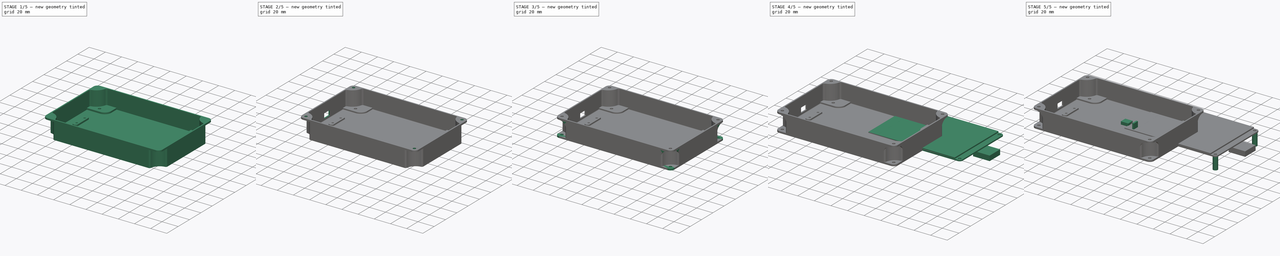
[diagram: build sequence overview — one tinted view per stage of 5, left to right]
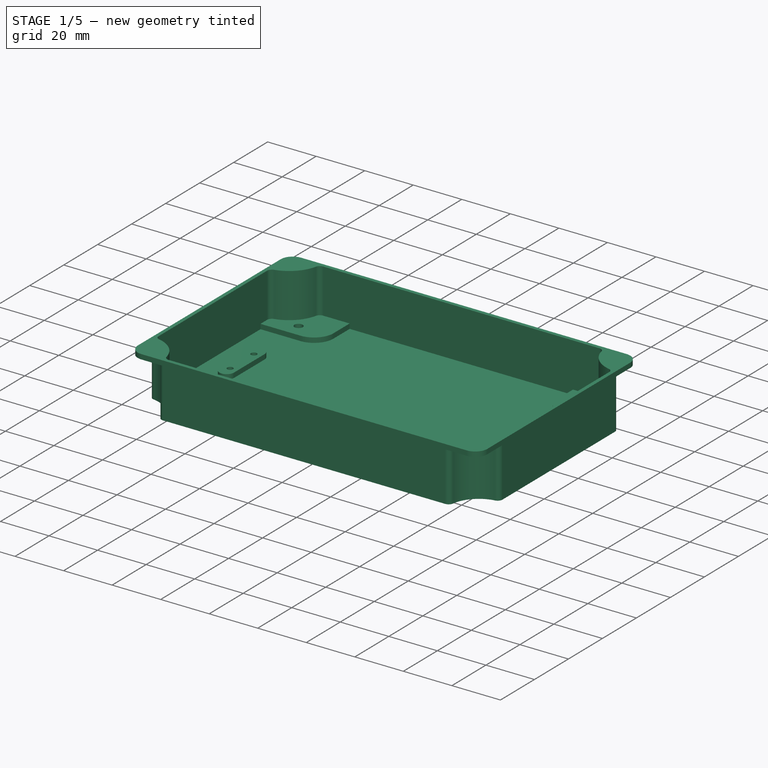
[diagram: stage 1 of 5 — iso view after this stage's code; geometry added in this stage tinted green]
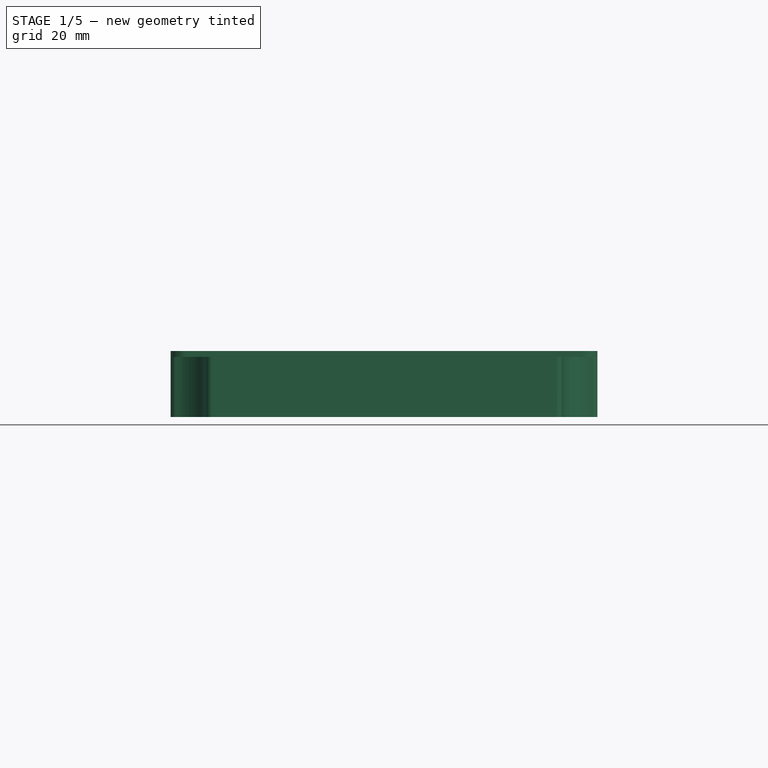
[diagram: stage 1 of 5 — front view after this stage's code; geometry added in this stage tinted green]
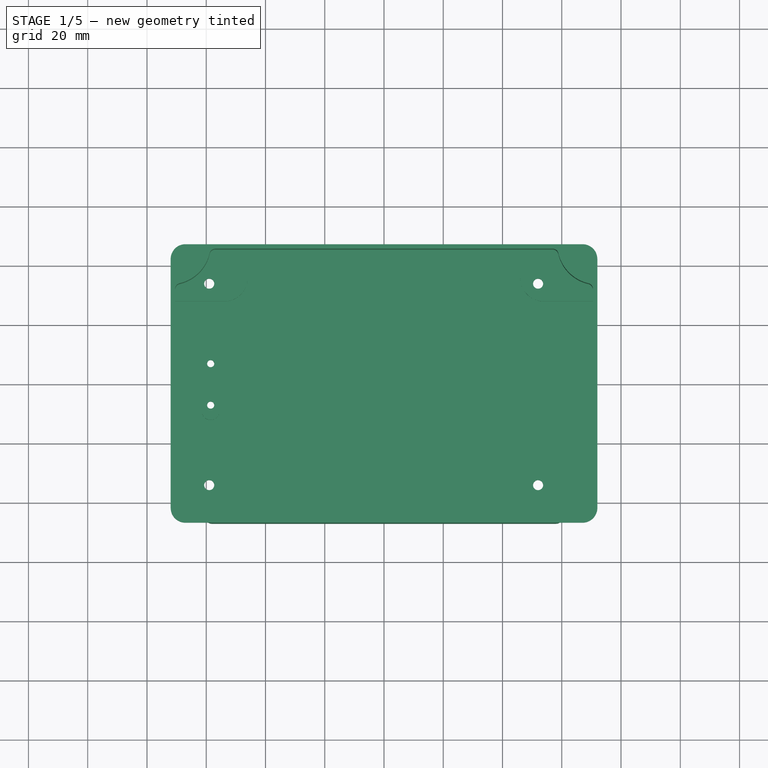
[diagram: stage 1 of 5 — top view after this stage's code; geometry added in this stage tinted green]
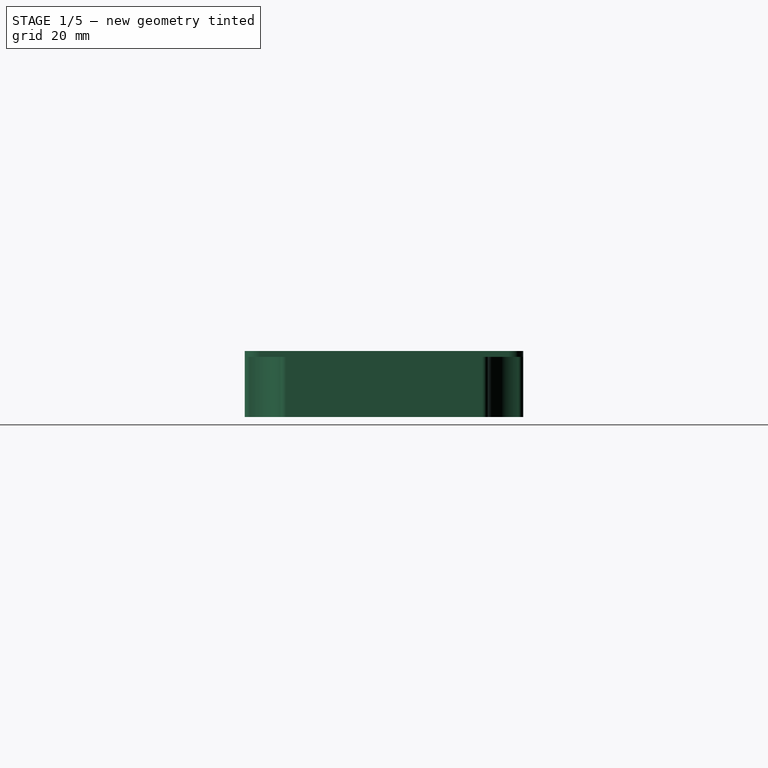
[diagram: stage 1 of 5 — right view after this stage's code; geometry added in this stage tinted green]
FCSTD DOCUMENT  (FreeCAD 0.19R24291 (Git))
Label: assemblage
License: All rights reserved
LicenseURL: http://en.wikipedia.org/wiki/All_rights_reserved
objects: Sketcher::SketchObject×25, PartDesign::Pad×18, PartDesign::Pocket×7, PartDesign::Body×4, PartDesign::Fillet×2, PartDesign::Chamfer×1
note: 85 computed .brp shape members not serialized (recipe doc carries the construction recipe); baked Part::Feature solids carry a one-line shape summary decoded from their .brp

FEATURE [PartDesign::Body] Body003
  Group = -> [Sketch031,Pad022,Chamfer]
  Origin = -> Origin003
  Placement = pos=(0,0,22.3) rot=(0,0,1;0rad)
  Tip = -> Chamfer
FEATURE [Sketcher::SketchObject] Sketch
  FullyConstrained = true
  MapMode = 5
  Support = -> [XY_Plane]
  sketch-geometry (16):
    g0: LineSegment StartX=-58.1436 StartY=47 StartZ=0 EndX=58.1436 EndY=47 EndZ=0
    g1: LineSegment StartX=72 StartY=33.1436 StartZ=0 EndX=72 EndY=-33.1436 EndZ=0
    g2: LineSegment StartX=58.1436 StartY=-47 StartZ=0 EndX=-58.1436 EndY=-47 EndZ=0
    g3: LineSegment StartX=-72 StartY=-33.1436 StartZ=0 EndX=-72 EndY=33.1436 EndZ=0
    g4: ArcOfCircle CenterX=-72 CenterY=47 CenterZ=0 NormalX=0 NormalY=0 NormalZ=1 AngleXU=0 Radius=12 StartAngle=4.85574 EndAngle=6.13984
    g5: ArcOfCircle CenterX=-72 CenterY=-47 CenterZ=0 NormalX=0 NormalY=0 NormalZ=1 AngleXU=0 Radius=12 StartAngle=0.143348 EndAngle=1.42745
    g6: ArcOfCircle CenterX=72 CenterY=-47 CenterZ=0 NormalX=0 NormalY=0 NormalZ=1 AngleXU=0 Radius=12 StartAngle=1.71414 EndAngle=2.99825
    g7: ArcOfCircle CenterX=72 CenterY=47 CenterZ=0 NormalX=0 NormalY=0 NormalZ=1 AngleXU=0 Radius=12 StartAngle=3.28494 EndAngle=4.56904
    g8: ArcOfCircle CenterX=-70 CenterY=-33.1436 CenterZ=0 NormalX=0 NormalY=0 NormalZ=1 AngleXU=0 Radius=2 StartAngle=3.14159 EndAngle=4.56904
    g9: ArcOfCircle CenterX=-58.1436 CenterY=-45 CenterZ=0 NormalX=0 NormalY=0 NormalZ=1 AngleXU=0 Radius=2 StartAngle=3.28494 EndAngle=4.71239
    g10: ArcOfCircle CenterX=-70 CenterY=33.1436 CenterZ=0 NormalX=0 NormalY=0 NormalZ=1 AngleXU=0 Radius=2 StartAngle=1.71414 EndAngle=3.14159
    g11: ArcOfCircle CenterX=-58.1436 CenterY=45 CenterZ=0 NormalX=0 NormalY=0 NormalZ=1 AngleXU=0 Radius=2 StartAngle=1.5708 EndAngle=2.99825
    g12: ArcOfCircle CenterX=58.1436 CenterY=45 CenterZ=0 NormalX=0 NormalY=0 NormalZ=1 AngleXU=0 Radius=2 StartAngle=0.143348 EndAngle=1.5708
    g13: ArcOfCircle CenterX=70 CenterY=33.1436 CenterZ=0 NormalX=0 NormalY=0 NormalZ=1 AngleXU=0 Radius=2 StartAngle=1e-15 EndAngle=1.42745
    g14: ArcOfCircle CenterX=58.1436 CenterY=-45 CenterZ=0 NormalX=0 NormalY=0 NormalZ=1 AngleXU=0 Radius=2 StartAngle=4.71239 EndAngle=6.13984
    g15: ArcOfCircle CenterX=70 CenterY=-33.1436 CenterZ=0 NormalX=0 NormalY=0 NormalZ=1 AngleXU=0 Radius=2 StartAngle=4.85574 EndAngle=6.28319
  constraints (44):
    c: Horizontal(g0)
    c: Horizontal(g2)
    c: Vertical(g1)
    c: Vertical(g3)
    c: DistanceX(g3,g1) = 144
    c: DistanceX(g3,g-1) = 72
    c: DistanceY(g2,g0) = 94
    c: DistanceY(g-1,g0) = 47
    c: PointOnObject(g4,g0)
    c: PointOnObject(g4,g3)
    c: Radius(g4) = 12
    c: PointOnObject(g5,g3)
    c: PointOnObject(g5,g2)
    c: PointOnObject(g7,g0)
    c: PointOnObject(g7,g1)
    c: PointOnObject(g6,g1)
    c: PointOnObject(g6,g2)
    c: Equal(g7,g6)
    c: Equal(g6,g5)
    c: Equal(g5,g4)
    c: Tangent(g8,g3) = 1.5708
    c: Tangent(g5,g8) = 1.5708
    c: Radius(g8) = 2
    c: Tangent(g9,g5) = 1.5708
    c: Tangent(g9,g2) = 1.5708
    c: Equal(g9,g8)
    c: Tangent(g10,g3) = 1.5708
    c: Tangent(g4,g10) = 1.5708
    c: Equal(g10,g8)
    c: Tangent(g11,g4) = 1.5708
    c: Tangent(g11,g0) = 1.5708
    c: Equal(g11,g8)
    c: Tangent(g12,g0) = 1.5708
    c: Tangent(g12,g7) = 1.5708
    c: Equal(g12,g8)
    c: Tangent(g7,g13) = 1.5708
    c: Tangent(g1,g13) = 1.5708
    c: Equal(g13,g8)
    c: Tangent(g2,g14) = 1.5708
    c: Tangent(g14,g6) = 1.5708
    c: Tangent(g6,g15) = 1.5708
    c: Tangent(g15,g1) = 1.5708
    c: Equal(g15,g14)
    c: Equal(g14,g8)
FEATURE [PartDesign::Pad] Pad
  Direction = (1,1,1)
  Length = 2
  Length2 = 100
  Profile = -> Sketch
  Type = 0
FEATURE [Sketcher::SketchObject] Sketch001
  ExternalGeometry = -> [Pad]
  FullyConstrained = true
  MapMode = 5
  Placement = pos=(0,0,2) rot=(0,0,1;0rad)
  Support = -> [Pad]
  sketch-geometry (32):
    g0: LineSegment StartX=-58.1436 StartY=47 StartZ=0 EndX=58.1436 EndY=47 EndZ=0
    g1: ArcOfCircle CenterX=72 CenterY=47 CenterZ=0 NormalX=0 NormalY=0 NormalZ=1 AngleXU=0 Radius=12 StartAngle=3.28494 EndAngle=4.56904
    g2: LineSegment StartX=72 StartY=33.1436 StartZ=0 EndX=72 EndY=-33.1436 EndZ=0
    g3: ArcOfCircle CenterX=72 CenterY=-47 CenterZ=0 NormalX=0 NormalY=0 NormalZ=1 AngleXU=0 Radius=12 StartAngle=1.71414 EndAngle=2.99825
    g4: LineSegment StartX=58.1436 StartY=-47 StartZ=0 EndX=-58.1436 EndY=-47 EndZ=0
    g5: ArcOfCircle CenterX=-72 CenterY=-47 CenterZ=0 NormalX=0 NormalY=0 NormalZ=1 AngleXU=0 Radius=12 StartAngle=0.143348 EndAngle=1.42745
    g6: LineSegment StartX=-72 StartY=-33.1436 StartZ=0 EndX=-72 EndY=33.1436 EndZ=0
    g7: ArcOfCircle CenterX=-72 CenterY=47 CenterZ=0 NormalX=0 NormalY=0 NormalZ=1 AngleXU=0 Radius=13.5 StartAngle=4.94016 EndAngle=6.05541
    g8: LineSegment StartX=-56.9003 StartY=45.5 StartZ=0 EndX=56.9003 EndY=45.5 EndZ=0
    g9: ArcOfCircle CenterX=72 CenterY=47 CenterZ=0 NormalX=0 NormalY=0 NormalZ=1 AngleXU=0 Radius=13.5 StartAngle=3.36936 EndAngle=4.48462
    g10: LineSegment StartX=70.5 StartY=31.9003 StartZ=0 EndX=70.5 EndY=-31.9003 EndZ=0
    g11: ArcOfCircle CenterX=72 CenterY=-47 CenterZ=0 NormalX=0 NormalY=0 NormalZ=1 AngleXU=0 Radius=13.5 StartAngle=1.79857 EndAngle=2.91382
    g12: LineSegment StartX=56.9003 StartY=-45.5 StartZ=0 EndX=-56.9003 EndY=-45.5 EndZ=0
    g13: ArcOfCircle CenterX=-72 CenterY=-47 CenterZ=0 NormalX=0 NormalY=0 NormalZ=1 AngleXU=0 Radius=13.5 StartAngle=0.227771 EndAngle=1.34303
    g14: LineSegment StartX=-70.5 StartY=-31.9003 StartZ=0 EndX=-70.5 EndY=31.9003 EndZ=0
    g15: ArcOfCircle CenterX=-72 CenterY=47 CenterZ=0 NormalX=0 NormalY=0 NormalZ=1 AngleXU=0 Radius=12 StartAngle=4.85574 EndAngle=6.13984
    g16: ArcOfCircle CenterX=-58.1436 CenterY=45 CenterZ=0 NormalX=0 NormalY=0 NormalZ=1 AngleXU=0 Radius=2 StartAngle=1.5708 EndAngle=2.99825
    g17: ArcOfCircle CenterX=-70 CenterY=33.1436 CenterZ=0 NormalX=0 NormalY=0 NormalZ=1 AngleXU=0 Radius=2 StartAngle=1.71414 EndAngle=3.14159
    g18: ArcOfCircle CenterX=58.1436 CenterY=45 CenterZ=0 NormalX=0 NormalY=0 NormalZ=1 AngleXU=0 Radius=2 StartAngle=0.143348 EndAngle=1.5708
    g19: ArcOfCircle CenterX=70 CenterY=33.1436 CenterZ=0 NormalX=0 NormalY=0 NormalZ=1 AngleXU=0 Radius=2 StartAngle=-3.6e-15 EndAngle=1.42745
    g20: ArcOfCircle CenterX=70 CenterY=-33.1436 CenterZ=0 NormalX=0 NormalY=0 NormalZ=1 AngleXU=0 Radius=2 StartAngle=4.85574 EndAngle=6.28319
    g21: ArcOfCircle CenterX=58.1436 CenterY=-45 CenterZ=0 NormalX=0 NormalY=0 NormalZ=1 AngleXU=0 Radius=2 StartAngle=4.71239 EndAngle=6.13984
    g22: ArcOfCircle CenterX=-58.1436 CenterY=-45 CenterZ=0 NormalX=0 NormalY=0 NormalZ=1 AngleXU=0 Radius=2 StartAngle=3.28494 EndAngle=4.71239
    g23: ArcOfCircle CenterX=-70 CenterY=-33.1436 CenterZ=0 NormalX=0 NormalY=0 NormalZ=1 AngleXU=0 Radius=2 StartAngle=3.14159 EndAngle=4.56904
    g24: ArcOfCircle CenterX=-56.9003 CenterY=43.5 CenterZ=0 NormalX=0 NormalY=0 NormalZ=1 AngleXU=0 Radius=2 StartAngle=1.5708 EndAngle=2.91382
    g25: ArcOfCircle CenterX=-68.5 CenterY=31.9003 CenterZ=0 NormalX=0 NormalY=0 NormalZ=1 AngleXU=0 Radius=2 StartAngle=1.79857 EndAngle=3.14159
    g26: ArcOfCircle CenterX=56.9003 CenterY=43.5 CenterZ=0 NormalX=0 NormalY=0 NormalZ=1 AngleXU=0 Radius=2 StartAngle=0.227771 EndAngle=1.5708
    g27: ArcOfCircle CenterX=68.5 CenterY=31.9003 CenterZ=0 NormalX=0 NormalY=0 NormalZ=1 AngleXU=0 Radius=2 StartAngle=6e-16 EndAngle=1.34303
    g28: ArcOfCircle CenterX=68.5 CenterY=-31.9003 CenterZ=0 NormalX=0 NormalY=0 NormalZ=1 AngleXU=0 Radius=2 StartAngle=4.94016 EndAngle=6.28319
    g29: ArcOfCircle CenterX=56.9003 CenterY=-43.5 CenterZ=0 NormalX=0 NormalY=0 NormalZ=1 AngleXU=0 Radius=2 StartAngle=4.71239 EndAngle=6.05541
    g30: ArcOfCircle CenterX=-56.9003 CenterY=-43.5 CenterZ=0 NormalX=0 NormalY=0 NormalZ=1 AngleXU=0 Radius=2 StartAngle=3.36936 EndAngle=4.71239
    g31: ArcOfCircle CenterX=-68.5 CenterY=-31.9003 CenterZ=0 NormalX=0 NormalY=0 NormalZ=1 AngleXU=0 Radius=2 StartAngle=3.14159 EndAngle=4.48462
  constraints (84):
    c: Horizontal(g8)
    c: Horizontal(g12)
    c: Vertical(g10)
    c: Vertical(g14)
    c: DistanceX(g10,g2) = 1.5
    c: Equal(g7,g13)
    c: Equal(g13,g9)
    c: Equal(g9,g11)
    c: Radius(g9) = 13.5
    c: Coincident(g11,g3)
    c: Coincident(g7,g15)
    c: Coincident(g9,g1)
    c: Coincident(g5,g13)
    c: DistanceY(g8,g0) = 1.5
    c: DistanceX(g6,g14) = 1.5
    c: Coincident(g-5,g15)
    c: Coincident(g15,g-6)
    c: Equal(g15,g-5)
    c: Coincident(g16,g15)
    c: Coincident(g16,g-4)
    c: Equal(g16,g-4)
    c: Coincident(g17,g15)
    c: Coincident(g17,g-7)
    c: Equal(g17,g-6)
    c: Coincident(g0,g16)
    c: Coincident(g0,g-8)
    c: Coincident(g18,g0)
    c: Coincident(g18,g-9)
    c: Equal(g18,g-8)
    c: Coincident(g19,g-10)
    c: Coincident(g19,g-11)
    c: Equal(g19,g-10)
    c: Coincident(g1,g18)
    c: Coincident(g1,g19)
    c: Equal(g1,g-9)
    c: Coincident(g2,g19)
    c: Coincident(g2,g-12)
    c: Coincident(g3,g-13)
    c: Coincident(g3,g-14)
    c: Equal(g3,g-13)
    c: Coincident(g20,g2)
    c: Coincident(g20,g3)
    c: Equal(g-12,g20)
    c: Coincident(g21,g3)
    c: Coincident(g21,g-15)
    c: Equal(g21,g-14)
    c: Coincident(g4,g21)
    c: Coincident(g4,g-16)
    c: Coincident(g22,g4)
    c: Coincident(g22,g-17)
    c: Equal(g22,g-16)
    c: Coincident(g5,g22)
    c: Coincident(g5,g-18)
    c: Equal(g5,g-17)
    c: Coincident(g23,g5)
    c: Coincident(g23,g-18)
    c: Equal(g23,g-18)
    c: Coincident(g6,g23)
    c: Coincident(g6,g17)
    c: Tangent(g24,g8) = 1.5708
    c: Tangent(g24,g7) = 1.5708
    c: Tangent(g25,g7) = 1.5708
    c: Tangent(g25,g14) = 1.5708
    c: Tangent(g26,g8) = 1.5708
    c: Tangent(g26,g9) = 1.5708
    c: Tangent(g27,g9) = 1.5708
    c: Tangent(g27,g10) = 1.5708
    c: DistanceY(g4,g12) = 1.5
    c: Tangent(g28,g10) = 1.5708
    c: Tangent(g28,g11) = 1.5708
    c: Tangent(g29,g11) = 1.5708
    c: Tangent(g29,g12) = 1.5708
    c: Tangent(g30,g12) = 1.5708
    c: Tangent(g30,g13) = 1.5708
    c: Tangent(g31,g13) = 1.5708
    c: Tangent(g14,g31) = 1.5708
    c: Equal(g25,g24)
    c: Equal(g24,g26)
    c: Equal(g26,g27)
    c: Equal(g27,g28)
    c: Equal(g28,g29)
    c: Equal(g29,g30)
    c: Equal(g30,g31)
    c: Radius(g24) = 2
FEATURE [PartDesign::Pad] Pad001
  BaseFeature = -> Pad
  Direction = (1,1,1)
  Length = 18.3
  Length2 = 100
  Profile = -> Sketch001
  Type = 0
FEATURE [Sketcher::SketchObject] Sketch002
  ExternalGeometry = -> [Pad001]
  FullyConstrained = true
  MapMode = 5
  Placement = pos=(0,0,2) rot=(0,0,1;0rad)
  Support = -> [Pad001]
  sketch-geometry (32):
    g0: LineSegment StartX=-46 StartY=45.5 StartZ=0 EndX=-46 EndY=36 EndZ=0
    g1: ArcOfCircle CenterX=-54 CenterY=36 CenterZ=0 NormalX=0 NormalY=0 NormalZ=1 AngleXU=0 Radius=8 StartAngle=4.71239 EndAngle=6.28319
    g2: LineSegment StartX=-54 StartY=28 StartZ=0 EndX=-70.5 EndY=28 EndZ=0
    g3: LineSegment StartX=-70.5 StartY=31.9003 StartZ=0 EndX=-70.5 EndY=28 EndZ=0
    g4: LineSegment StartX=56.9003 StartY=45.5 StartZ=0 EndX=46 EndY=45.5 EndZ=0
    g5: LineSegment StartX=46 StartY=45.5 StartZ=0 EndX=46 EndY=36 EndZ=0
    g6: ArcOfCircle CenterX=54 CenterY=36 CenterZ=0 NormalX=0 NormalY=0 NormalZ=1 AngleXU=0 Radius=8 StartAngle=3.14159 EndAngle=4.71239
    g7: LineSegment StartX=54 StartY=28 StartZ=0 EndX=70.5 EndY=28 EndZ=0
    g8: ArcOfCircle CenterX=-72 CenterY=-47 CenterZ=0 NormalX=0 NormalY=0 NormalZ=1 AngleXU=0 Radius=13.5 StartAngle=0.227771 EndAngle=1.34303
    g9: LineSegment StartX=70.5 StartY=-28 StartZ=0 EndX=54 EndY=-28 EndZ=0
    g10: LineSegment StartX=70.5 StartY=-31.9003 StartZ=0 EndX=70.5 EndY=-28 EndZ=0
    g11: ArcOfCircle CenterX=-54 CenterY=-36 CenterZ=0 NormalX=0 NormalY=0 NormalZ=1 AngleXU=0 Radius=8 StartAngle=0 EndAngle=1.5708
    g12: ArcOfCircle CenterX=72 CenterY=-47 CenterZ=0 NormalX=0 NormalY=0 NormalZ=1 AngleXU=0 Radius=13.5 StartAngle=1.79857 EndAngle=2.91382
    g13: LineSegment StartX=56.9003 StartY=-45.5 StartZ=0 EndX=46 EndY=-45.5 EndZ=0
    g14: LineSegment StartX=46 StartY=-45.5 StartZ=0 EndX=46 EndY=-36 EndZ=0
    g15: ArcOfCircle CenterX=54 CenterY=-36 CenterZ=0 NormalX=0 NormalY=0 NormalZ=1 AngleXU=0 Radius=8 StartAngle=1.5708 EndAngle=3.14159
    g16: LineSegment StartX=-46 StartY=-45.5 StartZ=0 EndX=-56.9003 EndY=-45.5 EndZ=0
    g17: LineSegment StartX=-46 StartY=-45.5 StartZ=0 EndX=-46 EndY=-36 EndZ=0
    g18: LineSegment StartX=-54 StartY=-28 StartZ=0 EndX=-70.5 EndY=-28 EndZ=0
    g19: LineSegment StartX=-70.5 StartY=-28 StartZ=0 EndX=-70.5 EndY=-31.9003 EndZ=0
    g20: ArcOfCircle CenterX=-72 CenterY=47 CenterZ=0 NormalX=0 NormalY=0 NormalZ=1 AngleXU=0 Radius=13.5 StartAngle=4.94016 EndAngle=6.05541
    g21: ArcOfCircle CenterX=-56.9003 CenterY=43.5 CenterZ=0 NormalX=0 NormalY=0 NormalZ=1 AngleXU=0 Radius=2 StartAngle=1.5708 EndAngle=2.91382
    g22: ArcOfCircle CenterX=-68.5 CenterY=31.9003 CenterZ=0 NormalX=0 NormalY=0 NormalZ=1 AngleXU=0 Radius=2 StartAngle=1.79857 EndAngle=3.14159
    g23: LineSegment StartX=-56.9003 StartY=45.5 StartZ=0 EndX=-46 EndY=45.5 EndZ=0
    g24: ArcOfCircle CenterX=56.9003 CenterY=43.5 CenterZ=0 NormalX=0 NormalY=0 NormalZ=1 AngleXU=0 Radius=2 StartAngle=0.227771 EndAngle=1.5708
    g25: ArcOfCircle CenterX=68.5 CenterY=31.9003 CenterZ=0 NormalX=0 NormalY=0 NormalZ=1 AngleXU=0 Radius=2 StartAngle=4.2e-15 EndAngle=1.34303
    g26: ArcOfCircle CenterX=72 CenterY=47 CenterZ=0 NormalX=0 NormalY=0 NormalZ=1 AngleXU=0 Radius=13.5 StartAngle=3.36936 EndAngle=4.48462
    g27: LineSegment StartX=70.5 StartY=31.9003 StartZ=0 EndX=70.5 EndY=28 EndZ=0
    g28: ArcOfCircle CenterX=68.5 CenterY=-31.9003 CenterZ=0 NormalX=0 NormalY=0 NormalZ=1 AngleXU=0 Radius=2 StartAngle=4.94016 EndAngle=6.28319
    g29: ArcOfCircle CenterX=56.9003 CenterY=-43.5 CenterZ=0 NormalX=0 NormalY=0 NormalZ=1 AngleXU=0 Radius=2 StartAngle=4.71239 EndAngle=6.05541
    g30: ArcOfCircle CenterX=-68.5 CenterY=-31.9003 CenterZ=0 NormalX=0 NormalY=0 NormalZ=1 AngleXU=0 Radius=2 StartAngle=3.14159 EndAngle=4.48462
    g31: ArcOfCircle CenterX=-56.9003 CenterY=-43.5 CenterZ=0 NormalX=0 NormalY=0 NormalZ=1 AngleXU=0 Radius=2 StartAngle=3.36936 EndAngle=4.71239
  constraints (88):
    c: Radius(g1) = 8
    c: DistanceX(g-1,g4) = 46
    c: DistanceY(g-1,g2) = 28
    c: DistanceY(g18,g-1) = 28
    c: Coincident(g20,g-3)
    c: Coincident(g20,g-3)
    c: Equal(g20,g-3)
    c: Coincident(g21,g20)
    c: Coincident(g-5,g21)
    c: Equal(g-4,g21)
    c: Coincident(g22,g20)
    c: Coincident(g22,g-7)
    c: Equal(g22,g-6)
    c: Coincident(g3,g22)
    c: Vertical(g3)
    c: Coincident(g3,g2)
    c: Horizontal(g2)
    c: Coincident(g23,g21)
    c: Horizontal(g23)
    c: Coincident(g0,g23)
    c: Vertical(g0)
    c: Tangent(g1,g0) = 1.5708
    c: Tangent(g1,g2) = 1.5708
    c: DistanceX(g0,g-1) = 46
    c: Coincident(g26,g-9)
    c: Coincident(g26,g-10)
    c: Equal(g26,g-9)
    c: Coincident(g24,g26)
    c: Coincident(g24,g-8)
    c: Equal(g24,g-8)
    c: Coincident(g26,g25)
    c: Coincident(g25,g-11)
    c: Equal(g25,g-10)
    c: Coincident(g4,g24)
    c: Horizontal(g4)
    c: Vertical(g5)
    c: Coincident(g5,g4)
    c: Vertical(g27)
    c: Coincident(g27,g25)
    c: Coincident(g7,g27)
    c: Horizontal(g7)
    c: Tangent(g7,g6) = -1.5708
    c: Tangent(g6,g5) = -1.5708
    c: PointOnObject(g6,g2)
    c: Equal(g6,g1)
    c: Equal(g1,g11)
    c: Equal(g11,g15)
    c: Coincident(g12,g-13)
    c: Coincident(g12,g-14)
    c: Equal(g12,g-13)
    c: Coincident(g28,g12)
    c: Coincident(g28,g-12)
    c: Equal(g28,g-12)
    c: Coincident(g10,g28)
    c: Vertical(g10)
    c: Vertical(g14)
    c: Horizontal(g9)
    c: Horizontal(g13)
    c: Coincident(g29,g12)
    c: Coincident(g29,g-15)
    c: Equal(g29,g-14)
    c: Coincident(g10,g9)
    c: Tangent(g15,g9) = -1.5708
    c: Tangent(g15,g14) = 1.5708
    c: Coincident(g13,g29)
    c: Coincident(g13,g14)
    c: PointOnObject(g5,g14)
    c: Coincident(g8,g-17)
    c: Coincident(g8,g-18)
    c: Equal(g8,g-17)
    c: Coincident(g30,g8)
    c: Coincident(g30,g-16)
    c: Equal(g30,g-16)
    c: Coincident(g8,g31)
    c: Coincident(g31,g-18)
    c: Equal(g31,g-18)
    c: Coincident(g19,g30)
    c: Vertical(g17)
    c: Vertical(g19)
    c: Horizontal(g18)
    c: Horizontal(g16)
    c: Coincident(g16,g31)
    c: Coincident(g18,g19)
    c: Tangent(g11,g18) = -1.5708
    c: Tangent(g11,g17) = -1.5708
    c: Coincident(g17,g16)
    c: PointOnObject(g0,g17)
    c: PointOnObject(g9,g18)
FEATURE [PartDesign::Pad] Pad002
  BaseFeature = -> Pad001
  Direction = (1,1,1)
  Length = 2
  Length2 = 100
  Profile = -> Sketch002
  Type = 0
FEATURE [Sketcher::SketchObject] Sketch003
  ExternalGeometry = -> [Pad002]
  FullyConstrained = true
  MapMode = 5
  Placement = pos=(0,0,20.3) rot=(0,0,1;0rad)
  Support = -> [Pad002]
  sketch-geometry (24):
    g0: LineSegment StartX=-67 StartY=47 StartZ=0 EndX=67 EndY=47 EndZ=0
    g1: LineSegment StartX=72 StartY=-42 StartZ=0 EndX=72 EndY=42 EndZ=0
    g2: LineSegment StartX=-67 StartY=-47 StartZ=0 EndX=67 EndY=-47 EndZ=0
    g3: LineSegment StartX=56.9003 StartY=45.5 StartZ=0 EndX=-56.9003 EndY=45.5 EndZ=0
    g4: ArcOfCircle CenterX=72 CenterY=47 CenterZ=0 NormalX=0 NormalY=0 NormalZ=1 AngleXU=0 Radius=13.5 StartAngle=3.36936 EndAngle=4.48462
    g5: ArcOfCircle CenterX=72 CenterY=-47 CenterZ=0 NormalX=0 NormalY=0 NormalZ=1 AngleXU=0 Radius=13.5 StartAngle=1.79857 EndAngle=2.91382
    g6: ArcOfCircle CenterX=68.5 CenterY=31.9003 CenterZ=0 NormalX=0 NormalY=0 NormalZ=1 AngleXU=0 Radius=2 StartAngle=1.423e-13 EndAngle=1.34303
    g7: LineSegment StartX=-56.9003 StartY=-45.5 StartZ=0 EndX=56.9003 EndY=-45.5 EndZ=0
    g8: LineSegment StartX=-72 StartY=-42 StartZ=0 EndX=-72 EndY=42 EndZ=0
    g9: LineSegment StartX=-70.5 StartY=-31.9003 StartZ=0 EndX=-70.5 EndY=31.9003 EndZ=0
    g10: LineSegment StartX=70.5 StartY=31.9003 StartZ=0 EndX=70.5 EndY=-31.9003 EndZ=0
    g11: ArcOfCircle CenterX=-67 CenterY=42 CenterZ=0 NormalX=0 NormalY=0 NormalZ=1 AngleXU=0 Radius=5 StartAngle=1.5708 EndAngle=3.14159
    g12: ArcOfCircle CenterX=67 CenterY=-42 CenterZ=0 NormalX=0 NormalY=0 NormalZ=1 AngleXU=0 Radius=5 StartAngle=4.71239 EndAngle=6.28319
    g13: ArcOfCircle CenterX=56.9003 CenterY=43.5 CenterZ=0 NormalX=0 NormalY=0 NormalZ=1 AngleXU=0 Radius=2 StartAngle=0.227771 EndAngle=1.5708
    g14: ArcOfCircle CenterX=67 CenterY=42 CenterZ=0 NormalX=0 NormalY=0 NormalZ=1 AngleXU=0 Radius=5 StartAngle=1e-16 EndAngle=1.5708
    g15: ArcOfCircle CenterX=-67 CenterY=-42 CenterZ=0 NormalX=0 NormalY=0 NormalZ=1 AngleXU=0 Radius=5 StartAngle=3.14159 EndAngle=4.71239
    g16: ArcOfCircle CenterX=68.5 CenterY=-31.9003 CenterZ=0 NormalX=0 NormalY=0 NormalZ=1 AngleXU=0 Radius=2 StartAngle=4.94016 EndAngle=6.28319
    g17: ArcOfCircle CenterX=56.9003 CenterY=-43.5 CenterZ=0 NormalX=0 NormalY=0 NormalZ=1 AngleXU=0 Radius=2 StartAngle=4.71239 EndAngle=6.05541
    g18: ArcOfCircle CenterX=-56.9003 CenterY=-43.5 CenterZ=0 NormalX=0 NormalY=0 NormalZ=1 AngleXU=0 Radius=2 StartAngle=3.36936 EndAngle=4.71239
    g19: ArcOfCircle CenterX=-72 CenterY=-47 CenterZ=0 NormalX=0 NormalY=0 NormalZ=1 AngleXU=0 Radius=13.5 StartAngle=0.227771 EndAngle=1.34303
    g20: ArcOfCircle CenterX=-68.5 CenterY=-31.9003 CenterZ=0 NormalX=0 NormalY=0 NormalZ=1 AngleXU=0 Radius=2 StartAngle=3.14159 EndAngle=4.48462
    g21: ArcOfCircle CenterX=-68.5 CenterY=31.9003 CenterZ=0 NormalX=0 NormalY=0 NormalZ=1 AngleXU=0 Radius=2 StartAngle=1.79857 EndAngle=3.14159
    g22: ArcOfCircle CenterX=-72 CenterY=47 CenterZ=0 NormalX=0 NormalY=0 NormalZ=1 AngleXU=0 Radius=13.5 StartAngle=4.94016 EndAngle=6.05541
    g23: ArcOfCircle CenterX=-56.9003 CenterY=43.5 CenterZ=0 NormalX=0 NormalY=0 NormalZ=1 AngleXU=0 Radius=2 StartAngle=1.5708 EndAngle=2.91382
  constraints (64):
    c: Radius(g11) = 5
    c: PointOnObject(g-7,g0)
    c: Tangent(g11,g0) = 1.5708
    c: Tangent(g8,g11) = 1.5708
    c: PointOnObject(g-8,g8)
    c: PointOnObject(g-8,g8)
    c: PointOnObject(g-7,g0)
    c: Tangent(g14,g0) = 1.5708
    c: Tangent(g1,g14) = -1.5708
    c: PointOnObject(g-5,g1)
    c: PointOnObject(g-6,g1)
    c: Tangent(g12,g1) = -1.5708
    c: Tangent(g2,g12) = -1.5708
    c: PointOnObject(g-14,g2)
    c: PointOnObject(g-14,g2)
    c: Tangent(g15,g8) = 1.5708
    c: Equal(g11,g14)
    c: Equal(g14,g12)
    c: Equal(g12,g15)
    c: Tangent(g15,g2) = -1.5708
    c: Coincident(g3,g-13)
    c: Coincident(g3,g-15)
    c: Coincident(g4,g-16)
    c: Coincident(g4,g-17)
    c: Equal(g4,g-16)
    c: Coincident(g10,g-18)
    c: Coincident(g13,g3)
    c: Coincident(g13,g4)
    c: Equal(g-15,g13)
    c: Coincident(g6,g10)
    c: Coincident(g6,g4)
    c: Equal(g6,g-17)
    c: Coincident(g9,g-11)
    c: Coincident(g9,g-25)
    c: Coincident(g7,g-22)
    c: Coincident(g5,g-20)
    c: Coincident(g5,g-21)
    c: Equal(g5,g-20)
    c: Coincident(g10,g-19)
    c: Coincident(g7,g-23)
    c: Coincident(g16,g10)
    c: Coincident(g16,g5)
    c: Equal(g16,g-19)
    c: Coincident(g17,g5)
    c: Coincident(g7,g17)
    c: Equal(g17,g-21)
    c: Coincident(g20,g9)
    c: Coincident(g20,g-25)
    c: Equal(g20,g-25)
    c: Coincident(g18,g7)
    c: Coincident(g18,g-24)
    c: Equal(g18,g-23)
    c: Coincident(g19,g18)
    c: Coincident(g19,g20)
    c: Equal(g-24,g19)
    c: Coincident(g23,g3)
    c: Coincident(g23,g-13)
    c: Equal(g23,g-13)
    c: Coincident(g22,g23)
    c: Coincident(g-12,g22)
    c: Equal(g22,g-12)
    c: Coincident(g21,g22)
    c: Coincident(g21,g9)
    c: Equal(g21,g-11)
FEATURE [PartDesign::Pad] Pad003
  BaseFeature = -> Pad002
  Direction = (1,1,1)
  Length = 2
  Length2 = 100
  Profile = -> Sketch003
  Type = 0
FEATURE [Sketcher::SketchObject] Sketch007
  ExternalGeometry = -> [Pad002]
  FullyConstrained = true
  MapMode = 5
  Placement = pos=(0,0,2) rot=(0,0,1;0rad)
  Support = -> [Pad002]
  sketch-geometry (4):
    g0: LineSegment StartX=-55.5 StartY=9 StartZ=0 EndX=-55.5 EndY=-9 EndZ=0
    g1: LineSegment StartX=-61.5 StartY=-9 StartZ=0 EndX=-61.5 EndY=9 EndZ=0
    g2: ArcOfCircle CenterX=-58.5 CenterY=-9 CenterZ=0 NormalX=0 NormalY=0 NormalZ=1 AngleXU=0 Radius=3 StartAngle=3.14159 EndAngle=6.28319
    g3: ArcOfCircle CenterX=-58.5 CenterY=9 CenterZ=0 NormalX=0 NormalY=0 NormalZ=1 AngleXU=0 Radius=3 StartAngle=0 EndAngle=3.14159
  constraints (10):
    c: Vertical(g0)
    c: Vertical(g1)
    c: DistanceX(g1,g0) = 6
    c: Tangent(g2,g0) = 1.5708
    c: Tangent(g2,g1) = 1.5708
    c: Tangent(g3,g1) = 1.5708
    c: Tangent(g0,g3) = 1.5708
    c: DistanceY(g2,g3) = 18
    c: DistanceY(g-1,g3) = 9
    c: DistanceX(g-3,g3) = 13.5
FEATURE [PartDesign::Pad] Pad004
  BaseFeature = -> Pad003
  Direction = (1,1,1)
  Length = 2
  Length2 = 100
  Profile = -> Sketch007
  Type = 0
FEATURE [Sketcher::SketchObject] Sketch005
  ExternalGeometry = -> [Pad004]
  FullyConstrained = true
  MapMode = 5
  Placement = pos=(0,0,0) rot=(1,0,0;3.14159rad)
  Support = -> [Pad004]
  sketch-geometry (6):
    g0: Circle CenterX=-59 CenterY=34 CenterZ=0 NormalX=0 NormalY=0 NormalZ=1 AngleXU=0 Radius=1.7
    g1: Circle CenterX=-59 CenterY=-34 CenterZ=0 NormalX=0 NormalY=0 NormalZ=1 AngleXU=0 Radius=1.7
    g2: Circle CenterX=52 CenterY=34 CenterZ=0 NormalX=0 NormalY=0 NormalZ=1 AngleXU=0 Radius=1.7
    g3: Circle CenterX=52 CenterY=-34 CenterZ=0 NormalX=0 NormalY=0 NormalZ=1 AngleXU=0 Radius=1.7
    g4: Circle CenterX=-58.5 CenterY=7 CenterZ=0 NormalX=0 NormalY=0 NormalZ=1 AngleXU=0 Radius=1.2
    g5: Circle CenterX=-58.5 CenterY=-7 CenterZ=0 NormalX=0 NormalY=0 NormalZ=1 AngleXU=0 Radius=1.2
  constraints (18):
    c: Horizontal(g0,g2)
    c: Horizontal(g1,g3)
    c: Vertical(g0,g1)
    c: Vertical(g2,g3)
    c: DistanceX(g0,g2) = 111
    c: DistanceX(g0,g-1) = 59
    c: DistanceY(g1,g0) = 68
    c: DistanceY(g-1,g0) = 34
    c: Diameter(g2) = 3.4
    c: Equal(g2,g3)
    c: Equal(g3,g1)
    c: Equal(g1,g0)
    c: Vertical(g5,g4)
    c: Equal(g5,g4)
    c: Diameter(g4) = 2.4
    c: DistanceY(g-1,g4) = 7
    c: DistanceY(g5,g-1) = 7
    c: DistanceX(g-3,g4) = 13.5
FEATURE [PartDesign::Pocket] Pocket
  BaseFeature = -> Pad004
  Length = 5
  Length2 = 100
  Profile = -> Sketch005
  Type = 1
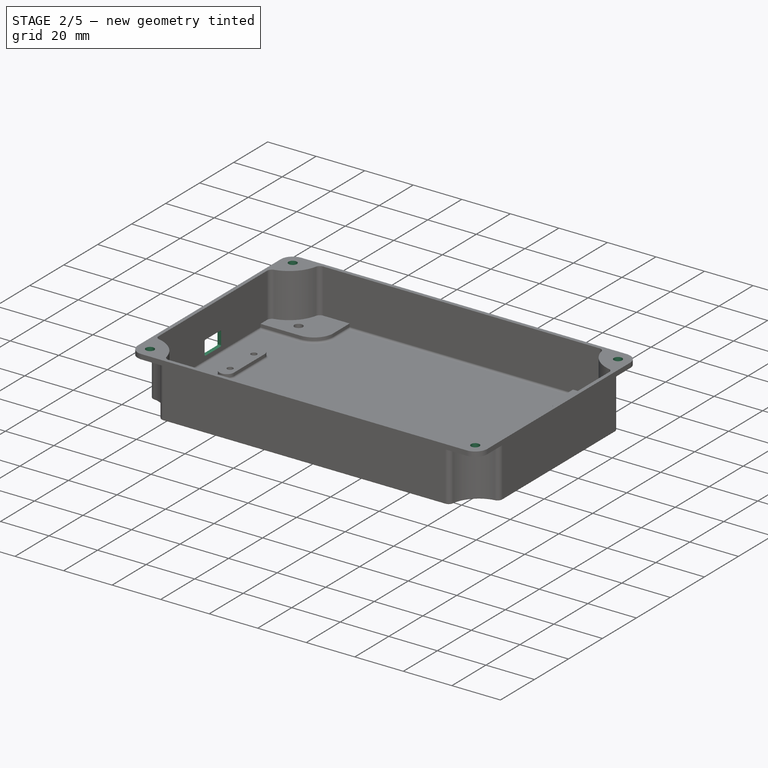
[diagram: stage 2 of 5 — iso view after this stage's code; geometry added in this stage tinted green]
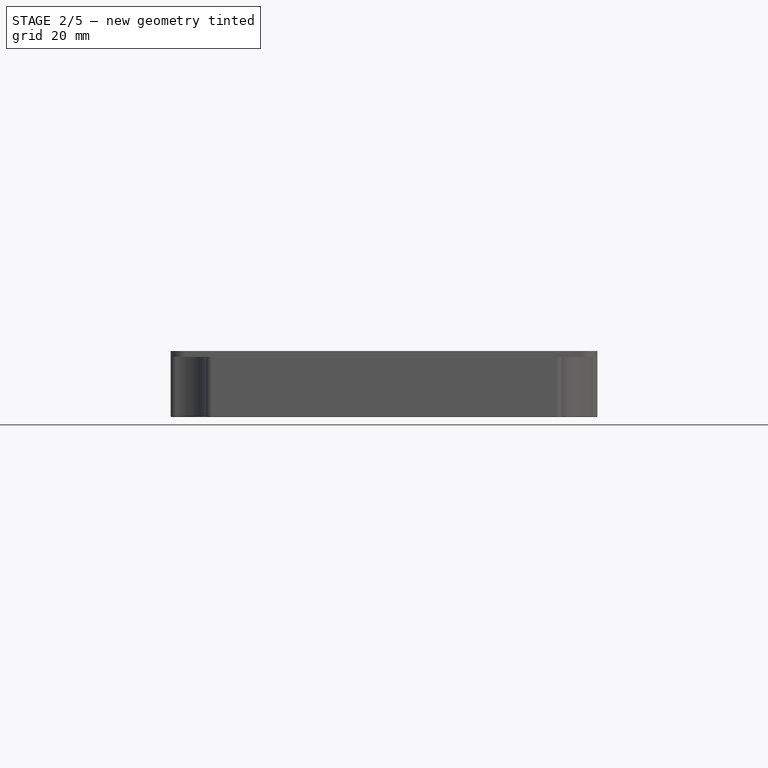
[diagram: stage 2 of 5 — front view after this stage's code; geometry added in this stage tinted green]
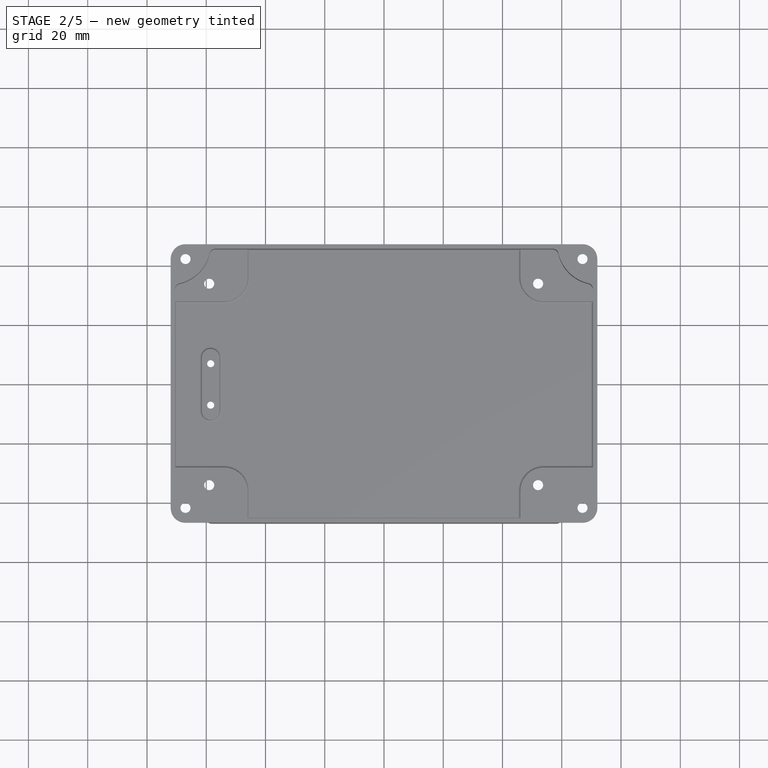
[diagram: stage 2 of 5 — top view after this stage's code; geometry added in this stage tinted green]
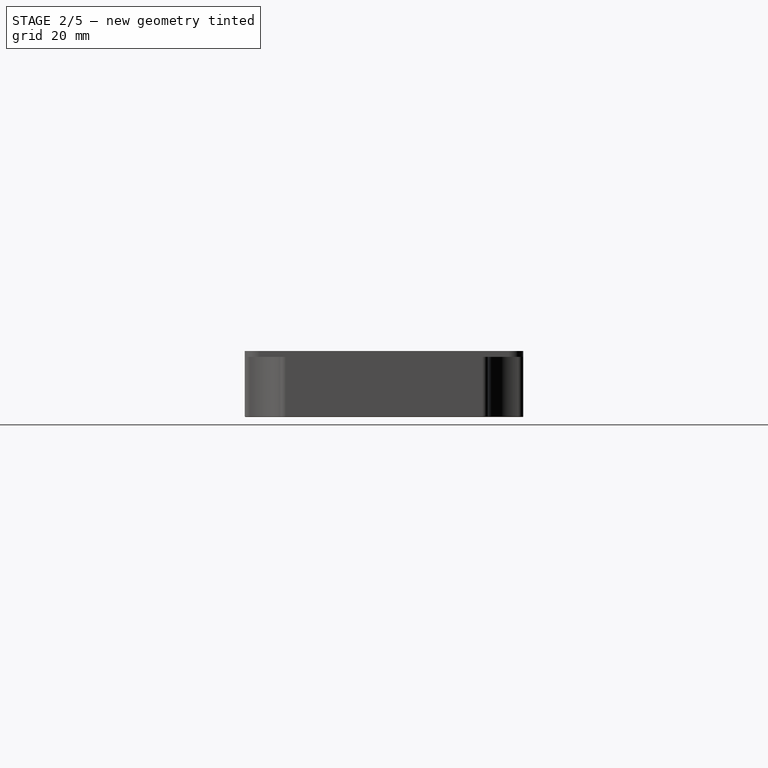
[diagram: stage 2 of 5 — right view after this stage's code; geometry added in this stage tinted green]
FEATURE [Sketcher::SketchObject] Sketch006
  ExternalGeometry = -> [Pocket]
  FullyConstrained = true
  MapMode = 5
  Placement = pos=(0,0,0) rot=(1,0,0;3.14159rad)
  Support = -> [Pocket]
  sketch-geometry (6):
    g0: Circle CenterX=-59 CenterY=34 CenterZ=0 NormalX=0 NormalY=0 NormalZ=1 AngleXU=0 Radius=3.5
    g1: Circle CenterX=52 CenterY=34 CenterZ=0 NormalX=0 NormalY=0 NormalZ=1 AngleXU=0 Radius=3.5
    g2: Circle CenterX=52 CenterY=-34 CenterZ=0 NormalX=0 NormalY=0 NormalZ=1 AngleXU=0 Radius=3.5
    g3: Circle CenterX=-59 CenterY=-34 CenterZ=0 NormalX=0 NormalY=0 NormalZ=1 AngleXU=0 Radius=3.5
    g4: Circle CenterX=-58.5 CenterY=7 CenterZ=0 NormalX=0 NormalY=0 NormalZ=1 AngleXU=0 Radius=2.5
    g5: Circle CenterX=-58.5 CenterY=-7 CenterZ=0 NormalX=0 NormalY=0 NormalZ=1 AngleXU=0 Radius=2.5
  constraints (12):
    c: Equal(g0,g1)
    c: Equal(g1,g3)
    c: Equal(g3,g2)
    c: Equal(g5,g4)
    c: Diameter(g0) = 7
    c: Diameter(g4) = 5
    c: Coincident(g0,g-3)
    c: Coincident(g1,g-4)
    c: Coincident(g2,g-5)
    c: Coincident(g3,g-6)
    c: Coincident(g4,g-8)
    c: Coincident(g5,g-7)
FEATURE [PartDesign::Pocket] Pocket001
  BaseFeature = -> Pocket
  Length = 2
  Length2 = 100
  Profile = -> Sketch006
  Type = 0
FEATURE [Sketcher::SketchObject] Sketch009
  ExternalGeometry = -> [Pocket001]
  FullyConstrained = true
  MapMode = 5
  Placement = pos=(0,0,22.3) rot=(0,0,1;0rad)
  Support = -> [Pocket001]
  sketch-geometry (4):
    g0: Circle CenterX=-67 CenterY=42 CenterZ=0 NormalX=0 NormalY=0 NormalZ=1 AngleXU=0 Radius=1.7
    g1: Circle CenterX=67 CenterY=42 CenterZ=0 NormalX=0 NormalY=0 NormalZ=1 AngleXU=0 Radius=1.7
    g2: Circle CenterX=67 CenterY=-42 CenterZ=0 NormalX=0 NormalY=0 NormalZ=1 AngleXU=0 Radius=1.7
    g3: Circle CenterX=-67 CenterY=-42 CenterZ=0 NormalX=0 NormalY=0 NormalZ=1 AngleXU=0 Radius=1.7
  constraints (10):
    c: Vertical(g3,g0)
    c: Vertical(g1,g2)
    c: Horizontal(g1,g0)
    c: Horizontal(g3,g2)
    c: Equal(g0,g1)
    c: Equal(g1,g2)
    c: Equal(g2,g3)
    c: Diameter(g0) = 3.4
    c: Coincident(g-3,g0)
    c: Coincident(g2,g-4)
FEATURE [PartDesign::Pocket] Pocket002
  BaseFeature = -> Pocket001
  Length = 5
  Length2 = 100
  Profile = -> Sketch009
  Type = 1
FEATURE [Sketcher::SketchObject] Sketch032
  ExternalGeometry = -> [Pocket002]
  FullyConstrained = true
  MapMode = 5
  Placement = pos=(-72,0,0) rot=(0.57735,-0.57735,-0.57735;2.0944rad)
  Support = -> [Pocket002]
  sketch-geometry (8):
    g0: LineSegment StartX=-4.35 StartY=10.5 StartZ=0 EndX=4.35 EndY=10.5 EndZ=0
    g1: LineSegment StartX=4.85 StartY=10 StartZ=0 EndX=4.85 EndY=5 EndZ=0
    g2: LineSegment StartX=4.35 StartY=4.5 StartZ=0 EndX=-4.35 EndY=4.5 EndZ=0
    g3: LineSegment StartX=-4.85 StartY=5 StartZ=0 EndX=-4.85 EndY=10 EndZ=0
    g4: ArcOfCircle CenterX=4.35 CenterY=10 CenterZ=0 NormalX=0 NormalY=0 NormalZ=1 AngleXU=0 Radius=0.5 StartAngle=3.3e-15 EndAngle=1.5708
    g5: ArcOfCircle CenterX=-4.35 CenterY=5 CenterZ=0 NormalX=0 NormalY=0 NormalZ=1 AngleXU=0 Radius=0.5 StartAngle=3.14159 EndAngle=4.71239
    g6: ArcOfCircle CenterX=-4.35 CenterY=10 CenterZ=0 NormalX=0 NormalY=0 NormalZ=1 AngleXU=0 Radius=0.5 StartAngle=1.5708 EndAngle=3.14159
    g7: ArcOfCircle CenterX=4.35 CenterY=5 CenterZ=0 NormalX=0 NormalY=0 NormalZ=1 AngleXU=0 Radius=0.5 StartAngle=4.71239 EndAngle=6.28319
  constraints (20):
    c: Horizontal(g0)
    c: Horizontal(g2)
    c: Vertical(g1)
    c: Vertical(g3)
    c: Tangent(g0,g4) = 1.5708
    c: Tangent(g1,g4) = 1.5708
    c: Tangent(g2,g5) = 1.5708
    c: Tangent(g3,g5) = 1.5708
    c: Tangent(g0,g6) = 1.5708
    c: Tangent(g3,g6) = 1.5708
    c: DistanceY(g2,g0) = 6
    c: DistanceY(g2) = 4.5
    c: DistanceX(g3) = -4.85
    c: Tangent(g1,g7) = 1.5708
    c: Tangent(g2,g7) = 1.5708
    c: DistanceX(g3,g1) = 9.7
    c: Equal(g4,g6)
    c: Equal(g6,g5)
    c: Equal(g5,g7)
    c: Radius(g4) = 0.5
FEATURE [PartDesign::Pocket] Pocket006
  BaseFeature = -> Pocket002
  Length = 5
  Length2 = 100
  Profile = -> Sketch032
  Type = 2
FEATURE [PartDesign::Fillet] Fillet
  Base = -> Pocket006 [Face101]
  BaseFeature = -> Pocket006
  Radius = 0.75
  SupportTransform = false
FEATURE [PartDesign::Fillet] Fillet001
  Base = -> Fillet [Face117]
  BaseFeature = -> Fillet
  Radius = 0.3
  SupportTransform = false
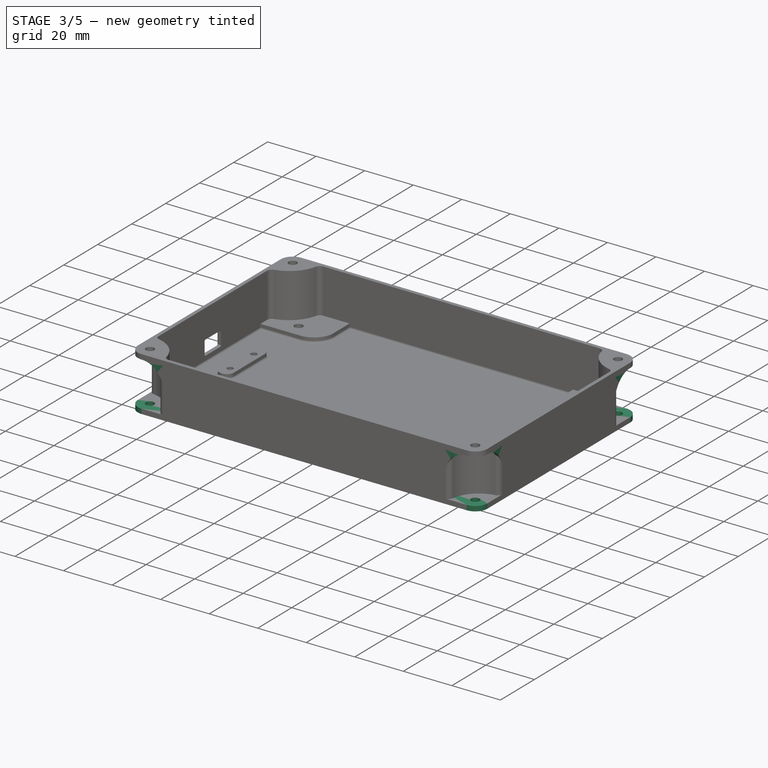
[diagram: stage 3 of 5 — iso view after this stage's code; geometry added in this stage tinted green]
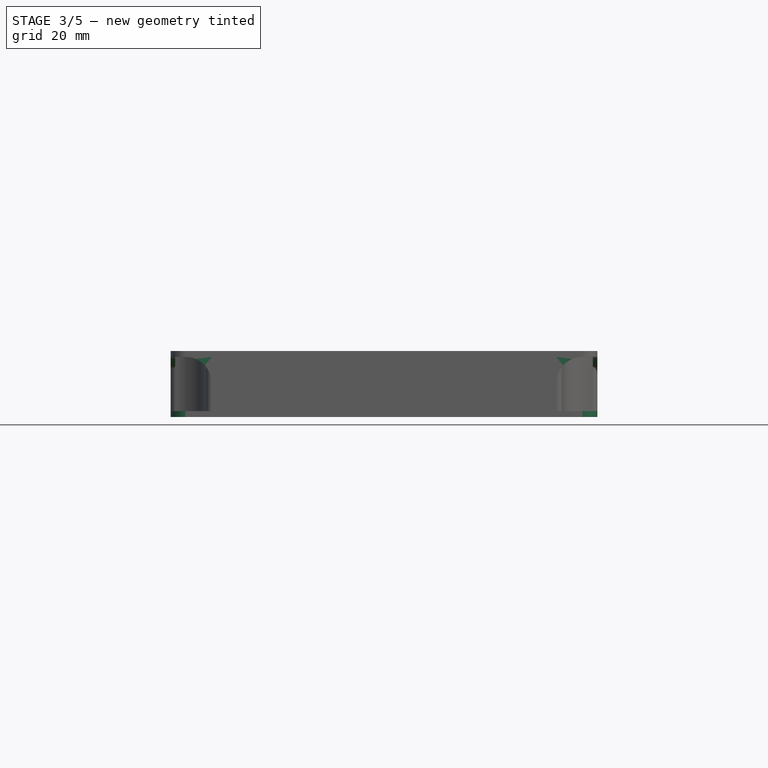
[diagram: stage 3 of 5 — front view after this stage's code; geometry added in this stage tinted green]
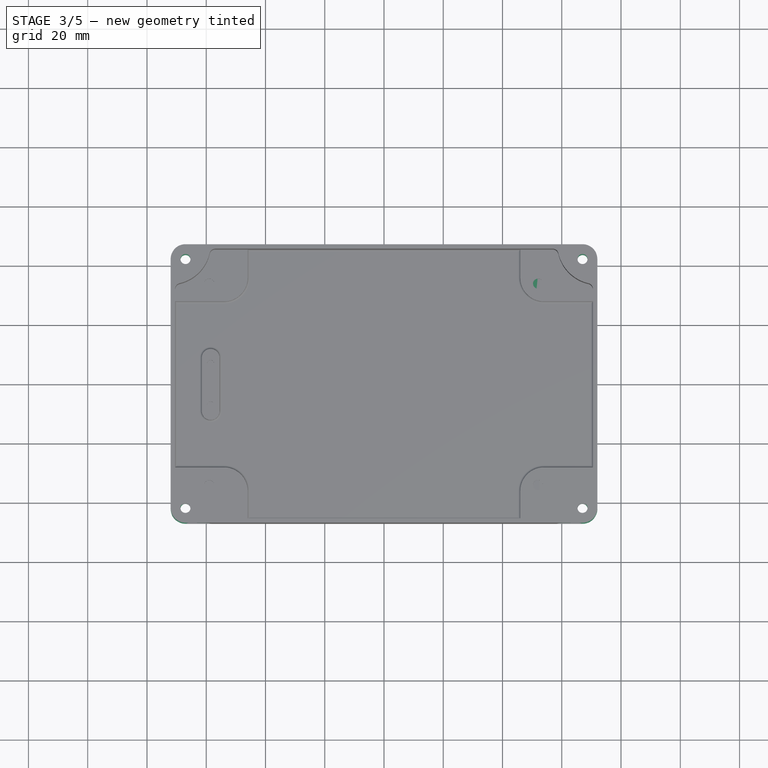
[diagram: stage 3 of 5 — top view after this stage's code; geometry added in this stage tinted green]
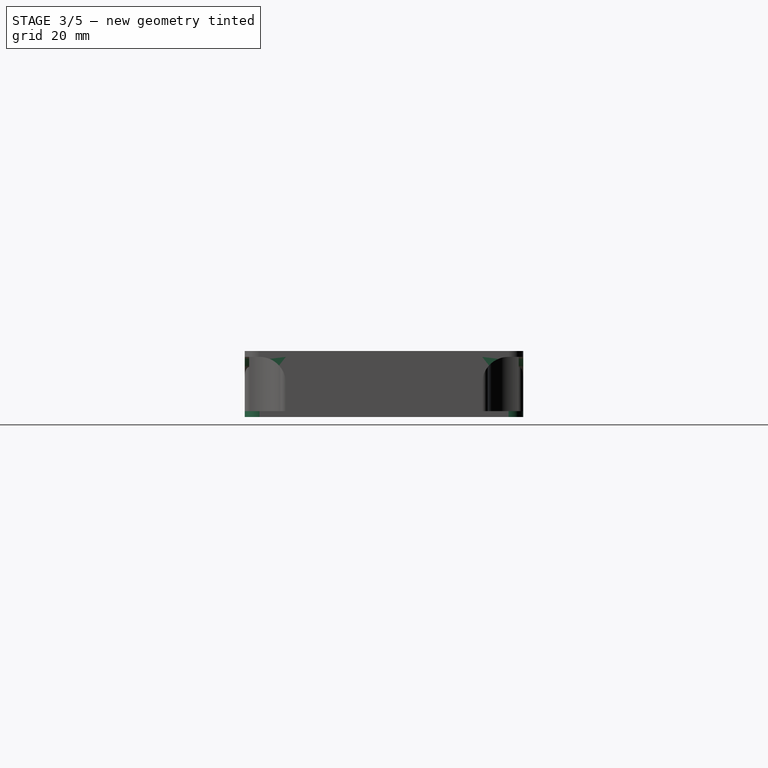
[diagram: stage 3 of 5 — right view after this stage's code; geometry added in this stage tinted green]
FEATURE [PartDesign::Body] Body002
  Group = -> [Sketch017,Pad012,Sketch014,Pocket004,Sketch015,Pad011,Sketch016,Pocket005,Sketch019,Pad010,Sketch018,Pad009]
  Origin = -> Origin002
  Placement = pos=(-62.5,-37.5,19) rot=(0,0,1;0rad)
  Tip = -> Pad009
FEATURE [Sketcher::SketchObject] Sketch031
  FullyConstrained = true
  MapMode = 5
  Support = -> [XY_Plane003]
  sketch-geometry (16):
    g0: LineSegment StartX=-67 StartY=47 StartZ=0 EndX=67 EndY=47 EndZ=0
    g1: LineSegment StartX=72 StartY=42 StartZ=0 EndX=72 EndY=-42 EndZ=0
    g2: LineSegment StartX=67 StartY=-47 StartZ=0 EndX=-67 EndY=-47 EndZ=0
    g3: LineSegment StartX=-72 StartY=-42 StartZ=0 EndX=-72 EndY=42 EndZ=0
    g4: ArcOfCircle CenterX=-67 CenterY=42 CenterZ=0 NormalX=0 NormalY=0 NormalZ=1 AngleXU=0 Radius=5 StartAngle=1.5708 EndAngle=3.14159
    g5: ArcOfCircle CenterX=67 CenterY=42 CenterZ=0 NormalX=0 NormalY=0 NormalZ=1 AngleXU=0 Radius=5 StartAngle=-6.529e-12 EndAngle=1.5708
    g6: ArcOfCircle CenterX=67 CenterY=-42 CenterZ=0 NormalX=0 NormalY=0 NormalZ=1 AngleXU=0 Radius=5 StartAngle=4.71239 EndAngle=6.28319
    g7: ArcOfCircle CenterX=-67 CenterY=-42 CenterZ=0 NormalX=0 NormalY=0 NormalZ=1 AngleXU=0 Radius=5 StartAngle=3.14159 EndAngle=4.71239
    g8: Circle CenterX=-67 CenterY=42 CenterZ=0 NormalX=0 NormalY=0 NormalZ=1 AngleXU=0 Radius=1.7
    g9: Circle CenterX=67 CenterY=42 CenterZ=0 NormalX=0 NormalY=0 NormalZ=1 AngleXU=0 Radius=1.7
    g10: Circle CenterX=67 CenterY=-42 CenterZ=0 NormalX=0 NormalY=0 NormalZ=1 AngleXU=0 Radius=1.7
    g11: Circle CenterX=-67 CenterY=-42 CenterZ=0 NormalX=0 NormalY=0 NormalZ=1 AngleXU=0 Radius=1.7
    g12: LineSegment StartX=-44.5 StartY=34 StartZ=0 EndX=44.5 EndY=34 EndZ=0
    g13: LineSegment StartX=44.5 StartY=34 StartZ=0 EndX=44.5 EndY=-34 EndZ=0
    g14: LineSegment StartX=44.5 StartY=-34 StartZ=0 EndX=-44.5 EndY=-34 EndZ=0
    g15: LineSegment StartX=-44.5 StartY=-34 StartZ=0 EndX=-44.5 EndY=34 EndZ=0
  constraints (40):
    c: Horizontal(g0)
    c: Horizontal(g2)
    c: Vertical(g1)
    c: Vertical(g3)
    c: Tangent(g0,g4) = 1.5708
    c: Tangent(g3,g4) = 1.5708
    c: Tangent(g0,g5) = 1.5708
    c: Tangent(g1,g5) = 1.5708
    c: Tangent(g1,g6) = 1.5708
    c: Tangent(g2,g6) = 1.5708
    c: Tangent(g2,g7) = 1.5708
    c: Tangent(g3,g7) = 1.5708
    c: Equal(g4,g5)
    c: Equal(g5,g6)
    c: Equal(g6,g7)
    c: Radius(g4) = 5
    c: DistanceX(g3,g1) = 144
    c: DistanceY(g2,g0) = 94
    c: DistanceX(g3,g-1) = 72
    c: DistanceY(g-1,g0) = 47
    c: Equal(g10,g9)
    c: Equal(g9,g8)
    c: Equal(g8,g11)
    c: Diameter(g8) = 3.4
    c: Coincident(g8,g4)
    c: Coincident(g9,g5)
    c: Coincident(g10,g6)
    c: Coincident(g11,g7)
    c: Coincident(g12,g13)
    c: Coincident(g13,g14)
    c: Coincident(g14,g15)
    c: Coincident(g15,g12)
    c: Horizontal(g12)
    c: Horizontal(g14)
    c: Vertical(g13)
    c: Vertical(g15)
    c: DistanceX(g12,g12) = 89
    c: DistanceY(g15,g15) = 68
    c: DistanceY(g-1,g12) = 34
    c: DistanceX(g12,g-1) = 44.5
FEATURE [PartDesign::Pad] Pad022
  Direction = (1,1,1)
  Length = 2
  Length2 = 100
  Profile = -> Sketch031
  Type = 0
FEATURE [PartDesign::Chamfer] Chamfer
  Angle = 45
  Base = -> Pad022 [Edge28,Edge36,Edge34,Edge31]
  BaseFeature = -> Pad022
  ChamferType = 1
  FlipDirection = false
  Size = 1
  Size2 = 8
  SupportTransform = false
FEATURE [Sketcher::SketchObject] Sketch035
  ExternalGeometry = -> [Fillet001]
  FullyConstrained = true
  MapMode = 5
  Placement = pos=(72,0,0) rot=(0.57735,0.57735,0.57735;2.0944rad)
  Support = -> [Fillet001]
  sketch-geometry (6):
    g0: LineSegment StartX=-42 StartY=20.3 StartZ=0 EndX=-33.1436 EndY=20.3 EndZ=0
    g1: LineSegment StartX=-33.1436 StartY=20.3 StartZ=0 EndX=-33.1436 EndY=11.4436 EndZ=0
    g2: LineSegment StartX=42 StartY=20.3 StartZ=0 EndX=33.1436 EndY=20.3 EndZ=0
    g3: LineSegment StartX=33.1436 StartY=20.3 StartZ=0 EndX=33.1436 EndY=11.4436 EndZ=0
    g4: ArcOfCircle CenterX=-42 CenterY=11.4436 CenterZ=0 NormalX=0 NormalY=0 NormalZ=1 AngleXU=0 Radius=8.85641 StartAngle=2e-16 EndAngle=1.5708
    g5: ArcOfCircle CenterX=42 CenterY=11.4436 CenterZ=0 NormalX=0 NormalY=0 NormalZ=1 AngleXU=0 Radius=8.85641 StartAngle=1.5708 EndAngle=3.14159
  constraints (14):
    c: Horizontal(g0)
    c: Vertical(g1)
    c: Horizontal(g2)
    c: Vertical(g3)
    c: Tangent(g4,g0) = 1.5708
    c: Tangent(g4,g1) = 1.5708
    c: Tangent(g5,g2) = -1.5708
    c: Tangent(g5,g3) = -1.5708
    c: Coincident(g2,g3)
    c: Coincident(g1,g0)
    c: Coincident(g2,g-4)
    c: PointOnObject(g-4,g3)
    c: Coincident(g0,g-3)
    c: PointOnObject(g-3,g1)
FEATURE [PartDesign::Pad] Pad026
  BaseFeature = -> Fillet001
  Direction = (1,1,1)
  Length = 1.5
  Length2 = 100
  Profile = -> Sketch035
  Reversed = true
  Type = 0
FEATURE [Sketcher::SketchObject] Sketch033
  ExternalGeometry = -> [Pad026]
  FullyConstrained = true
  MapMode = 5
  Placement = pos=(-72,0,0) rot=(0.57735,-0.57735,-0.57735;2.0944rad)
  Support = -> [Pad026]
  sketch-geometry (6):
    g0: LineSegment StartX=-42 StartY=20.3 StartZ=0 EndX=-33.1436 EndY=20.3 EndZ=0
    g1: LineSegment StartX=-33.1436 StartY=20.3 StartZ=0 EndX=-33.1436 EndY=11.4436 EndZ=0
    g2: LineSegment StartX=42 StartY=20.3 StartZ=0 EndX=33.1436 EndY=20.3 EndZ=0
    g3: LineSegment StartX=33.1436 StartY=20.3 StartZ=0 EndX=33.1436 EndY=11.4436 EndZ=0
    g4: ArcOfCircle CenterX=-42 CenterY=11.4436 CenterZ=0 NormalX=0 NormalY=0 NormalZ=1 AngleXU=0 Radius=8.85641 StartAngle=2e-16 EndAngle=1.5708
    g5: ArcOfCircle CenterX=42 CenterY=11.4436 CenterZ=0 NormalX=0 NormalY=0 NormalZ=1 AngleXU=0 Radius=8.85641 StartAngle=1.5708 EndAngle=3.14159
  constraints (14):
    c: Horizontal(g0)
    c: Coincident(g1,g0)
    c: Vertical(g1)
    c: Horizontal(g2)
    c: Coincident(g3,g2)
    c: Vertical(g3)
    c: Tangent(g5,g2) = -1.5708
    c: Tangent(g5,g3) = -1.5708
    c: Tangent(g4,g1) = 1.5708
    c: Tangent(g4,g0) = 1.5708
    c: Coincident(g0,g-3)
    c: PointOnObject(g-3,g1)
    c: Coincident(g2,g-4)
    c: PointOnObject(g-4,g3)
FEATURE [PartDesign::Pad] Pad023
  BaseFeature = -> Pad026
  Direction = (1,1,1)
  Length = 1.5
  Length2 = 100
  Profile = -> Sketch033
  Reversed = true
  Type = 0
FEATURE [Sketcher::SketchObject] Sketch036
  ExternalGeometry = -> [Pad023]
  FullyConstrained = true
  MapMode = 5
  Placement = pos=(0,-47,0) rot=(1,0,0;1.5708rad)
  Support = -> [Pad023]
  sketch-geometry (6):
    g0: LineSegment StartX=-67 StartY=20.3 StartZ=0 EndX=-58.1436 EndY=20.3 EndZ=0
    g1: LineSegment StartX=-58.1436 StartY=20.3 StartZ=0 EndX=-58.1436 EndY=11.4436 EndZ=0
    g2: LineSegment StartX=67 StartY=20.3 StartZ=0 EndX=58.1436 EndY=20.3 EndZ=0
    g3: LineSegment StartX=58.1436 StartY=20.3 StartZ=0 EndX=58.1436 EndY=11.4436 EndZ=0
    g4: ArcOfCircle CenterX=-67 CenterY=11.4436 CenterZ=0 NormalX=0 NormalY=0 NormalZ=1 AngleXU=0 Radius=8.85641 StartAngle=1e-16 EndAngle=1.5708
    g5: ArcOfCircle CenterX=67 CenterY=11.4436 CenterZ=0 NormalX=0 NormalY=0 NormalZ=1 AngleXU=0 Radius=8.85641 StartAngle=1.5708 EndAngle=3.14159
  constraints (14):
    c: Horizontal(g0)
    c: Vertical(g1)
    c: Horizontal(g2)
    c: Vertical(g3)
    c: Tangent(g5,g2) = -1.5708
    c: Tangent(g5,g3) = -1.5708
    c: Coincident(g3,g2)
    c: Tangent(g4,g1) = 1.5708
    c: Tangent(g4,g0) = 1.5708
    c: Coincident(g-4,g2)
    c: PointOnObject(g-4,g3)
    c: Coincident(g0,g-3)
    c: Coincident(g0,g1)
    c: PointOnObject(g-3,g1)
FEATURE [PartDesign::Pad] Pad025
  BaseFeature = -> Pad023
  Direction = (1,1,1)
  Length = 1.5
  Length2 = 100
  Profile = -> Sketch036
  Reversed = true
  Type = 0
FEATURE [Sketcher::SketchObject] Sketch034
  ExternalGeometry = -> [Pad025]
  FullyConstrained = true
  MapMode = 5
  Placement = pos=(0,47,0) rot=(0,0.707107,0.707107;3.14159rad)
  Support = -> [Pad025]
  sketch-geometry (6):
    g0: LineSegment StartX=-67 StartY=20.3 StartZ=0 EndX=-58.1436 EndY=20.3 EndZ=0
    g1: LineSegment StartX=-58.1436 StartY=20.3 StartZ=0 EndX=-58.1436 EndY=11.4436 EndZ=0
    g2: LineSegment StartX=67 StartY=20.3 StartZ=0 EndX=58.1436 EndY=20.3 EndZ=0
    g3: LineSegment StartX=58.1436 StartY=20.3 StartZ=0 EndX=58.1436 EndY=11.4436 EndZ=0
    g4: ArcOfCircle CenterX=-67 CenterY=11.4436 CenterZ=0 NormalX=0 NormalY=0 NormalZ=1 AngleXU=0 Radius=8.85641 StartAngle=2e-16 EndAngle=1.5708
    g5: ArcOfCircle CenterX=67 CenterY=11.4436 CenterZ=0 NormalX=0 NormalY=0 NormalZ=1 AngleXU=0 Radius=8.85641 StartAngle=1.5708 EndAngle=3.14159
  constraints (14):
    c: Horizontal(g0)
    c: Vertical(g1)
    c: Horizontal(g2)
    c: Vertical(g3)
    c: Tangent(g4,g0) = 1.5708
    c: Tangent(g4,g1) = 1.5708
    c: Coincident(g0,g1)
    c: Tangent(g5,g2) = -1.5708
    c: Tangent(g5,g3) = -1.5708
    c: Coincident(g2,g3)
    c: Coincident(g0,g-3)
    c: PointOnObject(g-3,g1)
    c: Coincident(g2,g-4)
    c: PointOnObject(g-4,g3)
FEATURE [PartDesign::Pad] Pad024
  BaseFeature = -> Pad025
  Direction = (1,1,1)
  Length = 1.5
  Length2 = 100
  Profile = -> Sketch034
  Reversed = true
  Type = 0
FEATURE [PartDesign::Body] Body
  Group = -> [Sketch,Pad,Sketch001,Pad001,Sketch002,Pad002,Sketch003,Pad003,Sketch005,Sketch006,Sketch007,Pad004,Pocket,Pocket001,Sketch009,Pocket002,Sketch032,Pocket006,Fillet,Fillet001,Sketch035,Pad026,Sketch033,Pad023,Sketch036,Pad025,Sketch034,Pad024]
  Origin = -> Origin
  Tip = -> Pad024
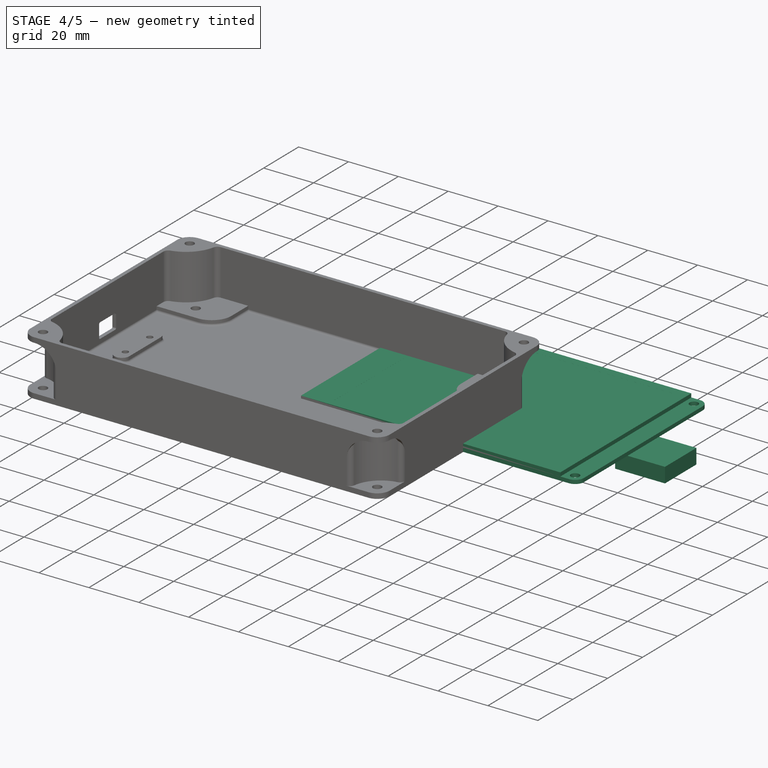
[diagram: stage 4 of 5 — iso view after this stage's code; geometry added in this stage tinted green]
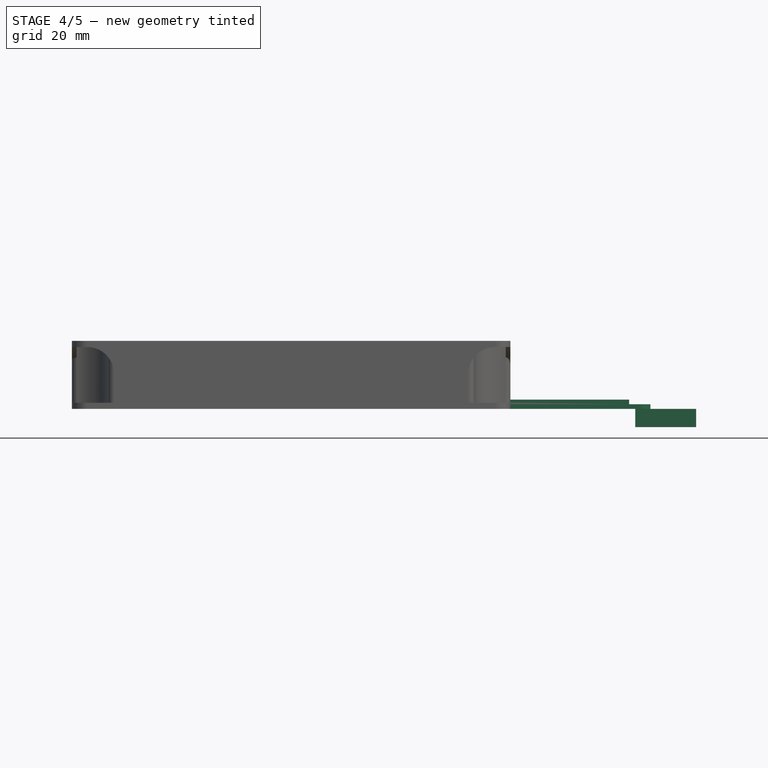
[diagram: stage 4 of 5 — front view after this stage's code; geometry added in this stage tinted green]
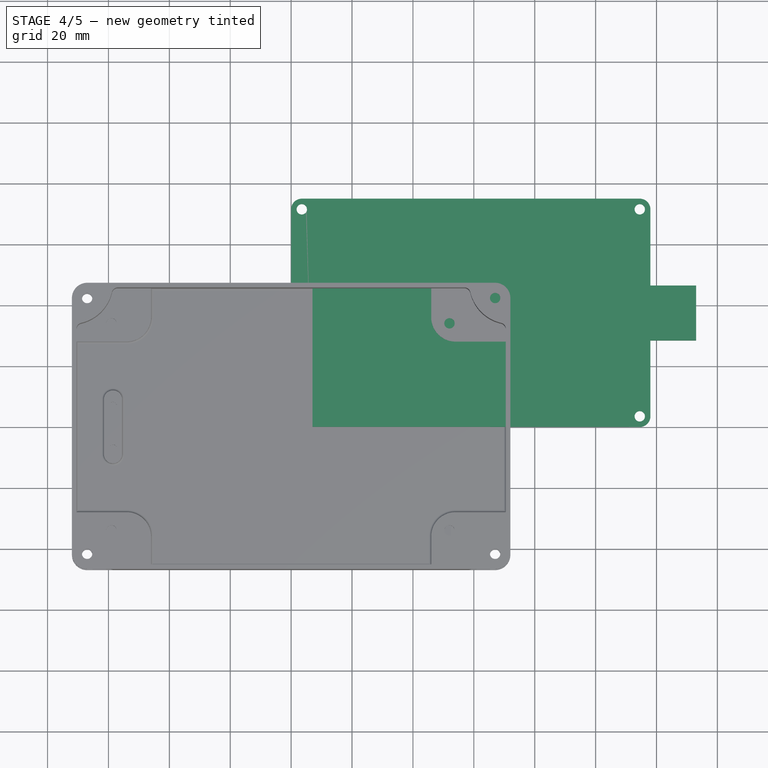
[diagram: stage 4 of 5 — top view after this stage's code; geometry added in this stage tinted green]
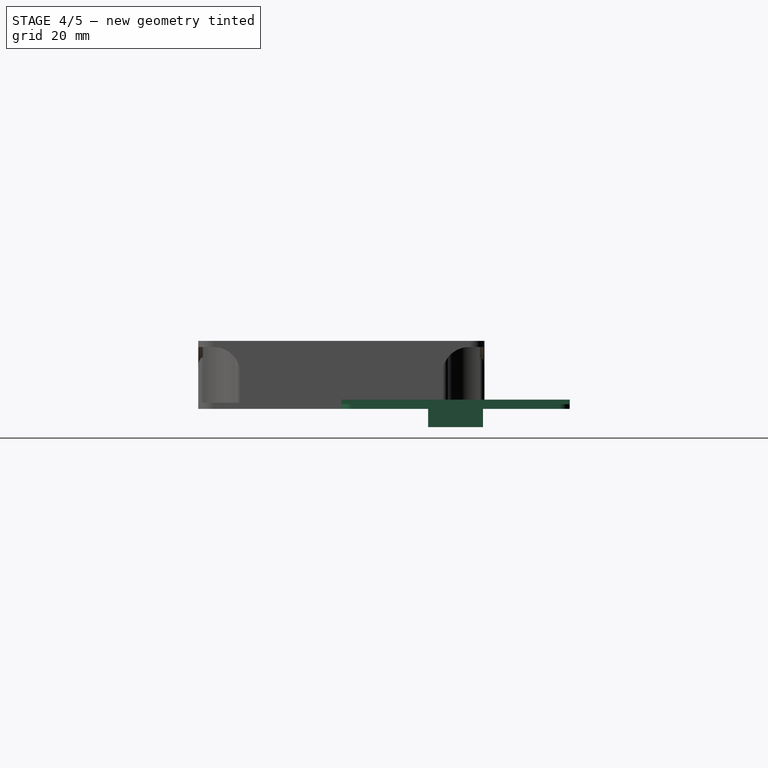
[diagram: stage 4 of 5 — right view after this stage's code; geometry added in this stage tinted green]
FEATURE [PartDesign::Body] Body001
  Group = -> [Sketch010,Pad006,Sketch011,Pad008,Sketch012,Pocket003,Sketch013,Pad007,Sketch004,Pad005]
  Origin = -> Origin001
  Placement = pos=(-69.5,-9.75,4) rot=(0,0,1;0rad)
  Tip = -> Pad005
FEATURE [Sketcher::SketchObject] Sketch017
  FullyConstrained = true
  MapMode = 5
  Support = -> [XY_Plane002]
  sketch-geometry (8):
    g0: LineSegment StartX=3.5 StartY=75 StartZ=0 EndX=114.5 EndY=75 EndZ=0
    g1: LineSegment StartX=118 StartY=71.5 StartZ=0 EndX=118 EndY=3.5 EndZ=0
    g2: LineSegment StartX=114.5 StartY=0 StartZ=0 EndX=3.5 EndY=0 EndZ=0
    g3: LineSegment StartX=4e-16 StartY=3.5 StartZ=0 EndX=4e-16 EndY=71.5 EndZ=0
    g4: ArcOfCircle CenterX=3.5 CenterY=3.5 CenterZ=0 NormalX=0 NormalY=0 NormalZ=1 AngleXU=0 Radius=3.5 StartAngle=3.14159 EndAngle=4.71239
    g5: ArcOfCircle CenterX=3.5 CenterY=71.5 CenterZ=0 NormalX=0 NormalY=0 NormalZ=1 AngleXU=0 Radius=3.5 StartAngle=1.5708 EndAngle=3.14159
    g6: ArcOfCircle CenterX=114.5 CenterY=71.5 CenterZ=0 NormalX=0 NormalY=0 NormalZ=1 AngleXU=0 Radius=3.5 StartAngle=3e-16 EndAngle=1.5708
    g7: ArcOfCircle CenterX=114.5 CenterY=3.5 CenterZ=0 NormalX=0 NormalY=0 NormalZ=1 AngleXU=0 Radius=3.5 StartAngle=4.71239 EndAngle=6.28319
  constraints (20):
    c: Horizontal(g0)
    c: Horizontal(g2)
    c: Vertical(g1)
    c: Vertical(g3)
    c: Tangent(g2,g4) = 1.5708
    c: Tangent(g3,g4) = 1.5708
    c: Tangent(g0,g5) = 1.5708
    c: Tangent(g3,g5) = 1.5708
    c: Tangent(g0,g6) = 1.5708
    c: Tangent(g1,g6) = 1.5708
    c: Tangent(g1,g7) = 1.5708
    c: Tangent(g2,g7) = 1.5708
    c: Equal(g5,g4)
    c: Equal(g4,g7)
    c: Equal(g7,g6)
    c: Radius(g6) = 3.5
    c: PointOnObject(g-1,g2)
    c: PointOnObject(g-1,g3)
    c: DistanceX(g3,g1) = 118
    c: DistanceY(g2,g0) = 75
FEATURE [PartDesign::Pad] Pad012
  Direction = (1,1,1)
  Length = 1.5
  Length2 = 100
  Profile = -> Sketch017
  Type = 0
FEATURE [Sketcher::SketchObject] Sketch014
  FullyConstrained = true
  MapMode = 5
  Placement = pos=(0,0,1.5) rot=(0,0,1;0rad)
  Support = -> [Pad012]
  sketch-geometry (4):
    g0: Circle CenterX=3.5 CenterY=3.5 CenterZ=0 NormalX=0 NormalY=0 NormalZ=1 AngleXU=0 Radius=1.7
    g1: Circle CenterX=3.5 CenterY=71.5 CenterZ=0 NormalX=0 NormalY=0 NormalZ=1 AngleXU=0 Radius=1.7
    g2: Circle CenterX=114.5 CenterY=71.5 CenterZ=0 NormalX=0 NormalY=0 NormalZ=1 AngleXU=0 Radius=1.7
    g3: Circle CenterX=114.5 CenterY=3.5 CenterZ=0 NormalX=0 NormalY=0 NormalZ=1 AngleXU=0 Radius=1.7
  constraints (12):
    c: Equal(g1,g2)
    c: Equal(g2,g3)
    c: Equal(g3,g0)
    c: Vertical(g0,g1)
    c: Vertical(g3,g2)
    c: Horizontal(g2,g1)
    c: Horizontal(g3,g0)
    c: DistanceY(g0,g1) = 68
    c: DistanceY(g-1,g0) = 3.5
    c: DistanceX(g-1,g0) = 3.5
    c: DistanceX(g0,g3) = 111
    c: Diameter(g2) = 3.4
FEATURE [PartDesign::Pocket] Pocket004
  BaseFeature = -> Pad012
  Length = 5
  Length2 = 100
  Profile = -> Sketch014
  Type = 1
FEATURE [Sketcher::SketchObject] Sketch015
  ExternalGeometry = -> [Pocket004]
  FullyConstrained = true
  MapMode = 5
  Placement = pos=(0,0,1.5) rot=(0,0,1;0rad)
  Support = -> [Pocket004]
  sketch-geometry (4):
    g0: LineSegment StartX=7 StartY=0 StartZ=0 EndX=111 EndY=0 EndZ=0
    g1: LineSegment StartX=111 StartY=0 StartZ=0 EndX=111 EndY=75 EndZ=0
    g2: LineSegment StartX=111 StartY=75 StartZ=0 EndX=7 EndY=75 EndZ=0
    g3: LineSegment StartX=7 StartY=75 StartZ=0 EndX=7 EndY=0 EndZ=0
  constraints (12):
    c: Coincident(g0,g1)
    c: Coincident(g1,g2)
    c: Coincident(g2,g3)
    c: Coincident(g3,g0)
    c: Horizontal(g0)
    c: Horizontal(g2)
    c: Vertical(g1)
    c: Vertical(g3)
    c: DistanceX(g2,g2) = 104
    c: Horizontal(g0,g-1)
    c: PointOnObject(g2,g-3)
    c: DistanceX(g-1,g0) = 7
FEATURE [PartDesign::Pad] Pad011
  BaseFeature = -> Pocket004
  Direction = (1,1,1)
  Length = 1.5
  Length2 = 100
  Profile = -> Sketch015
  Type = 0
FEATURE [Sketcher::SketchObject] Sketch016
  FullyConstrained = true
  MapMode = 5
  Placement = pos=(0,0,3) rot=(0,0,1;0rad)
  Support = -> [Pad011]
  sketch-geometry (4):
    g0: LineSegment StartX=18 StartY=71.5 StartZ=0 EndX=107 EndY=71.5 EndZ=0
    g1: LineSegment StartX=107 StartY=71.5 StartZ=0 EndX=107 EndY=3.5 EndZ=0
    g2: LineSegment StartX=107 StartY=3.5 StartZ=0 EndX=18 EndY=3.5 EndZ=0
    g3: LineSegment StartX=18 StartY=3.5 StartZ=0 EndX=18 EndY=71.5 EndZ=0
  constraints (12):
    c: Coincident(g0,g1)
    c: Coincident(g1,g2)
    c: Coincident(g2,g3)
    c: Coincident(g3,g0)
    c: Horizontal(g0)
    c: Horizontal(g2)
    c: Vertical(g1)
    c: Vertical(g3)
    c: DistanceX(g-1,g2) = 18
    c: DistanceX(g2,g2) = 89
    c: DistanceY(g-1,g2) = 3.5
    c: DistanceY(g3,g3) = 68
FEATURE [PartDesign::Pocket] Pocket005
  BaseFeature = -> Pad011
  Length = 0.01
  Length2 = 100
  Profile = -> Sketch016
  Type = 0
FEATURE [Sketcher::SketchObject] Sketch019
  ExternalGeometry = -> [Pocket005]
  FullyConstrained = true
  MapMode = 5
  Placement = pos=(0,0,0) rot=(1,0,0;3.14159rad)
  Support = -> [Pocket005]
  sketch-geometry (4):
    g0: LineSegment StartX=113 StartY=-28.5 StartZ=0 EndX=133 EndY=-28.5 EndZ=0
    g1: LineSegment StartX=133 StartY=-28.5 StartZ=0 EndX=133 EndY=-46.5 EndZ=0
    g2: LineSegment StartX=133 StartY=-46.5 StartZ=0 EndX=113 EndY=-46.5 EndZ=0
    g3: LineSegment StartX=113 StartY=-46.5 StartZ=0 EndX=113 EndY=-28.5 EndZ=0
  constraints (12):
    c: Coincident(g0,g1)
    c: Coincident(g1,g2)
    c: Coincident(g2,g3)
    c: Coincident(g3,g0)
    c: Horizontal(g0)
    c: Horizontal(g2)
    c: Vertical(g1)
    c: Vertical(g3)
    c: DistanceX(g0,g0) = 20
    c: DistanceY(g1,g1) = 18
    c: DistanceY(g0,g-1) = 28.5
    c: DistanceX(g-3,g0) = 15
FEATURE [PartDesign::Pad] Pad010
  BaseFeature = -> Pocket005
  Direction = (1,1,1)
  Length = 6
  Length2 = 100
  Profile = -> Sketch019
  Type = 0
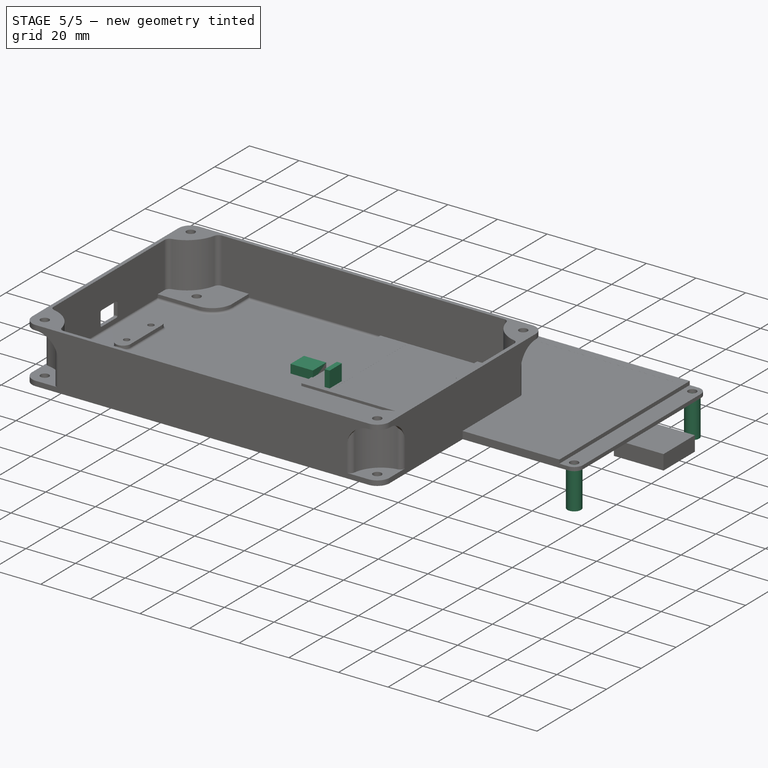
[diagram: stage 5 of 5 — iso view after this stage's code; geometry added in this stage tinted green]
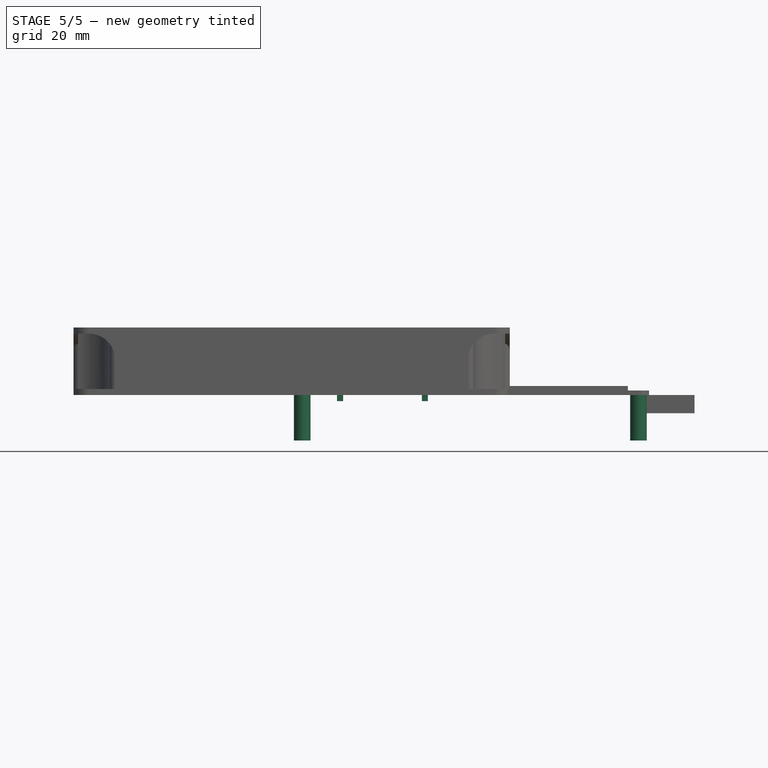
[diagram: stage 5 of 5 — front view after this stage's code; geometry added in this stage tinted green]
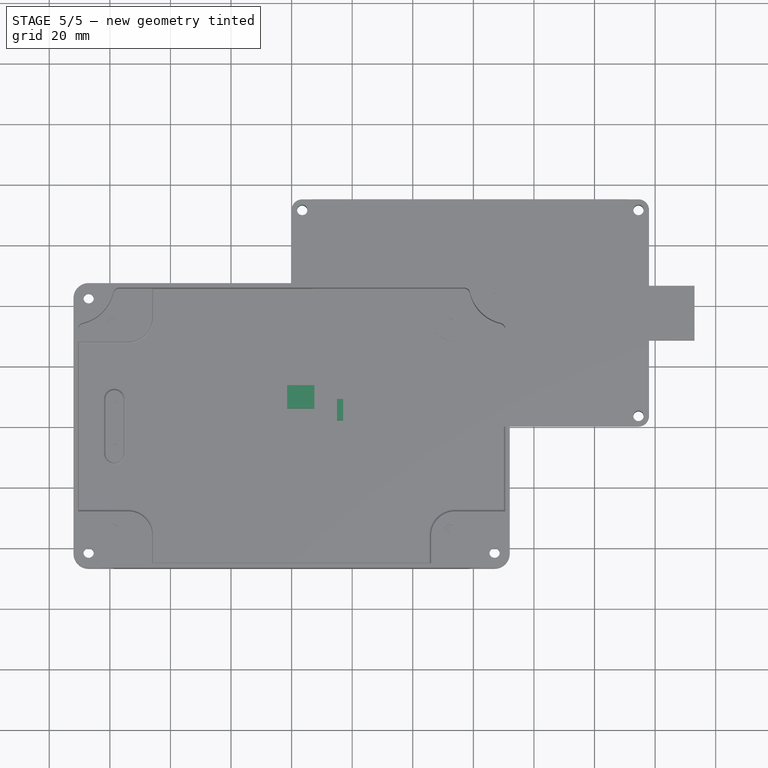
[diagram: stage 5 of 5 — top view after this stage's code; geometry added in this stage tinted green]
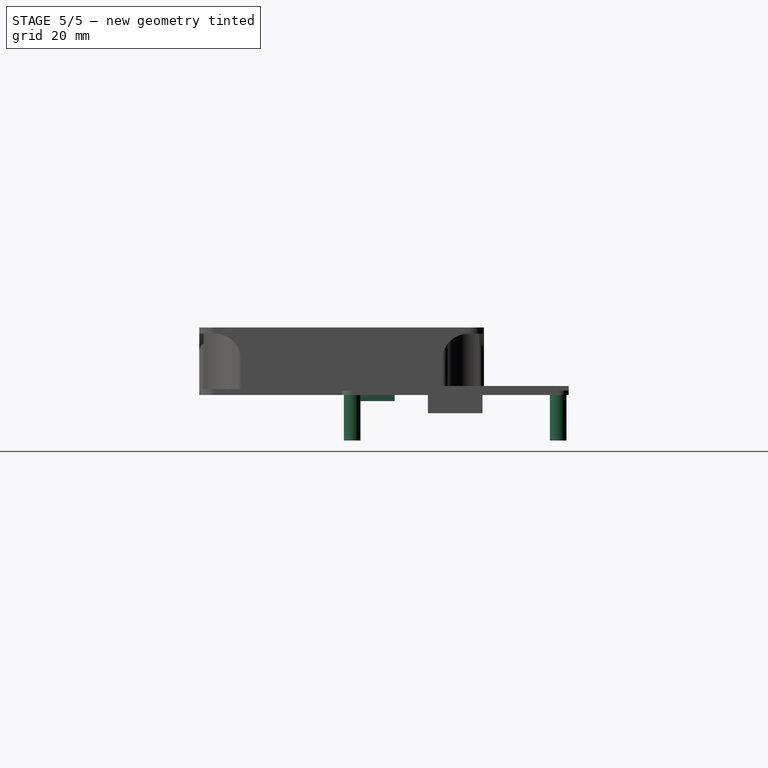
[diagram: stage 5 of 5 — right view after this stage's code; geometry added in this stage tinted green]
FEATURE [Sketcher::SketchObject] Sketch010
  FullyConstrained = true
  MapMode = 5
  Support = -> [XY_Plane001]
  sketch-geometry (4):
    g0: LineSegment StartX=0 StartY=0 StartZ=0 EndX=47 EndY=0 EndZ=0
    g1: LineSegment StartX=47 StartY=0 StartZ=0 EndX=47 EndY=19.5 EndZ=0
    g2: LineSegment StartX=47 StartY=19.5 StartZ=0 EndX=0 EndY=19.5 EndZ=0
    g3: LineSegment StartX=0 StartY=19.5 StartZ=0 EndX=0 EndY=0 EndZ=0
  constraints (11):
    c: Coincident(g0,g1)
    c: Coincident(g1,g2)
    c: Coincident(g2,g3)
    c: Coincident(g3,g0)
    c: Horizontal(g0)
    c: Horizontal(g2)
    c: Vertical(g1)
    c: Vertical(g3)
    c: Coincident(g0,g-1)
    c: DistanceY(g3,g3) = 19.5
    c: DistanceX(g2,g2) = 47
FEATURE [PartDesign::Pad] Pad006
  Direction = (1,1,1)
  Length = 1.5
  Length2 = 100
  Profile = -> Sketch010
  Type = 0
FEATURE [Sketcher::SketchObject] Sketch011
  FullyConstrained = true
  MapMode = 5
  Placement = pos=(0,0,1.5) rot=(0,0,1;0rad)
  Support = -> [Pad006]
  sketch-geometry (4):
    g0: LineSegment StartX=-1.5 StartY=13.6 StartZ=0 EndX=7.5 EndY=13.6 EndZ=0
    g1: LineSegment StartX=7.5 StartY=13.6 StartZ=0 EndX=7.5 EndY=5.9 EndZ=0
    g2: LineSegment StartX=7.5 StartY=5.9 StartZ=0 EndX=-1.5 EndY=5.9 EndZ=0
    g3: LineSegment StartX=-1.5 StartY=5.9 StartZ=0 EndX=-1.5 EndY=13.6 EndZ=0
  constraints (12):
    c: Coincident(g0,g1)
    c: Coincident(g1,g2)
    c: Coincident(g2,g3)
    c: Coincident(g3,g0)
    c: Horizontal(g0)
    c: Horizontal(g2)
    c: Vertical(g1)
    c: Vertical(g3)
    c: DistanceX(g0,g0) = 9
    c: DistanceY(g3,g3) = 7.7
    c: DistanceY(g-1,g2) = 5.9
    c: DistanceX(g2,g-1) = 1.5
FEATURE [PartDesign::Pad] Pad008
  BaseFeature = -> Pad006
  Direction = (1,1,1)
  Length = 4
  Length2 = 100
  Profile = -> Sketch011
  Type = 0
FEATURE [Sketcher::SketchObject] Sketch012
  FullyConstrained = true
  MapMode = 5
  Placement = pos=(0,0,1.5) rot=(0,0,1;0rad)
  Support = -> [Pad008]
  sketch-geometry (2):
    g0: Circle CenterX=11 CenterY=16.75 CenterZ=0 NormalX=0 NormalY=0 NormalZ=1 AngleXU=0 Radius=1.2
    g1: Circle CenterX=11 CenterY=2.75 CenterZ=0 NormalX=0 NormalY=0 NormalZ=1 AngleXU=0 Radius=1.2
  constraints (6):
    c: Vertical(g0,g1)
    c: DistanceX(g-1,g1) = 11
    c: Equal(g0,g1)
    c: Diameter(g0) = 2.4
    c: DistanceY(g1,g0) = 14
    c: DistanceY(g-1,g1) = 2.75
FEATURE [PartDesign::Pocket] Pocket003
  BaseFeature = -> Pad008
  Length = 5
  Length2 = 100
  Profile = -> Sketch012
  Type = 1
FEATURE [Sketcher::SketchObject] Sketch013
  ExternalGeometry = -> [Pocket003]
  FullyConstrained = true
  MapMode = 5
  Placement = pos=(0,0,0) rot=(1,0,0;3.14159rad)
  Support = -> [Pocket003]
  sketch-geometry (8):
    g0: LineSegment StartX=43 StartY=-2 StartZ=0 EndX=45 EndY=-2 EndZ=0
    g1: LineSegment StartX=45 StartY=-2 StartZ=0 EndX=45 EndY=-17.5 EndZ=0
    g2: LineSegment StartX=45 StartY=-17.5 StartZ=0 EndX=43 EndY=-17.5 EndZ=0
    g3: LineSegment StartX=43 StartY=-17.5 StartZ=0 EndX=43 EndY=-2 EndZ=0
    g4: LineSegment StartX=15 StartY=-2 StartZ=0 EndX=17 EndY=-2 EndZ=0
    g5: LineSegment StartX=17 StartY=-2 StartZ=0 EndX=17 EndY=-9 EndZ=0
    g6: LineSegment StartX=17 StartY=-9 StartZ=0 EndX=15 EndY=-9 EndZ=0
    g7: LineSegment StartX=15 StartY=-9 StartZ=0 EndX=15 EndY=-2 EndZ=0
  constraints (24):
    c: Coincident(g0,g1)
    c: Coincident(g1,g2)
    c: Coincident(g2,g3)
    c: Coincident(g3,g0)
    c: Horizontal(g0)
    c: Horizontal(g2)
    c: Vertical(g1)
    c: Vertical(g3)
    c: Coincident(g4,g5)
    c: Coincident(g5,g6)
    c: Coincident(g6,g7)
    c: Coincident(g7,g4)
    c: Horizontal(g4)
    c: Horizontal(g6)
    c: Vertical(g5)
    c: Vertical(g7)
    c: DistanceX(g0,g-3) = 2
    c: DistanceX(g0,g0) = 2
    c: DistanceY(g0,g-1) = 2
    c: DistanceY(g-3,g1) = 2
    c: DistanceX(g4,g4) = 2
    c: DistanceY(g4,g-1) = 2
    c: DistanceY(g7,g7) = 7
    c: DistanceX(g-1,g4) = 15
FEATURE [PartDesign::Pad] Pad007
  BaseFeature = -> Pocket003
  Direction = (1,1,1)
  Length = 2
  Length2 = 100
  Profile = -> Sketch013
  Type = 0
FEATURE [Sketcher::SketchObject] Sketch004
  FullyConstrained = true
  MapMode = 5
  Placement = pos=(0,0,1.5) rot=(0,0,1;0rad)
  Support = -> [Pad007]
  sketch-geometry (4):
    g0: LineSegment StartX=15 StartY=9 StartZ=0 EndX=17 EndY=9 EndZ=0
    g1: LineSegment StartX=17 StartY=9 StartZ=0 EndX=17 EndY=2 EndZ=0
    g2: LineSegment StartX=17 StartY=2 StartZ=0 EndX=15 EndY=2 EndZ=0
    g3: LineSegment StartX=15 StartY=2 StartZ=0 EndX=15 EndY=9 EndZ=0
  constraints (12):
    c: Coincident(g0,g1)
    c: Coincident(g1,g2)
    c: Coincident(g2,g3)
    c: Coincident(g3,g0)
    c: Horizontal(g0)
    c: Horizontal(g2)
    c: Vertical(g1)
    c: Vertical(g3)
    c: DistanceX(g0,g0) = 2
    c: DistanceX(g-1,g2) = 15
    c: DistanceY(g-1,g1) = 2
    c: DistanceY(g3,g3) = 7
FEATURE [PartDesign::Pad] Pad005
  BaseFeature = -> Pad007
  Direction = (1,1,1)
  Length = 8
  Length2 = 100
  Profile = -> Sketch004
  Type = 0
FEATURE [Sketcher::SketchObject] Sketch018
  ExternalGeometry = -> [Pad010]
  FullyConstrained = true
  MapMode = 5
  Placement = pos=(0,0,0) rot=(1,0,0;3.14159rad)
  Support = -> [Pad010]
  sketch-geometry (8):
    g0: Circle CenterX=3.5 CenterY=-3.5 CenterZ=0 NormalX=0 NormalY=0 NormalZ=1 AngleXU=0 Radius=1.7
    g1: Circle CenterX=114.5 CenterY=-3.5 CenterZ=0 NormalX=0 NormalY=0 NormalZ=1 AngleXU=0 Radius=1.7
    g2: Circle CenterX=114.5 CenterY=-71.5 CenterZ=0 NormalX=0 NormalY=0 NormalZ=1 AngleXU=0 Radius=1.7
    g3: Circle CenterX=3.5 CenterY=-71.5 CenterZ=0 NormalX=0 NormalY=0 NormalZ=1 AngleXU=0 Radius=1.7
    g4: Circle CenterX=3.5 CenterY=-3.5 CenterZ=0 NormalX=0 NormalY=0 NormalZ=1 AngleXU=0 Radius=2.75
    g5: Circle CenterX=114.5 CenterY=-3.5 CenterZ=0 NormalX=0 NormalY=0 NormalZ=1 AngleXU=0 Radius=2.75
    g6: Circle CenterX=114.5 CenterY=-71.5 CenterZ=0 NormalX=0 NormalY=0 NormalZ=1 AngleXU=0 Radius=2.75
    g7: Circle CenterX=3.5 CenterY=-71.5 CenterZ=0 NormalX=0 NormalY=0 NormalZ=1 AngleXU=0 Radius=2.75
  constraints (16):
    c: Coincident(g0,g-3)
    c: Coincident(g1,g-4)
    c: Coincident(g2,g-5)
    c: Coincident(g-6,g3)
    c: Coincident(g4,g0)
    c: Coincident(g5,g1)
    c: Coincident(g6,g2)
    c: Coincident(g7,g3)
    c: Equal(g4,g7)
    c: Equal(g7,g5)
    c: Equal(g5,g6)
    c: Equal(g0,g-3)
    c: Equal(g1,g-4)
    c: Equal(g2,g-5)
    c: Equal(g-6,g3)
    c: Diameter(g4) = 5.5
FEATURE [PartDesign::Pad] Pad009
  BaseFeature = -> Pad010
  Direction = (1,1,1)
  Length = 15
  Length2 = 100
  Profile = -> Sketch018
  Type = 0
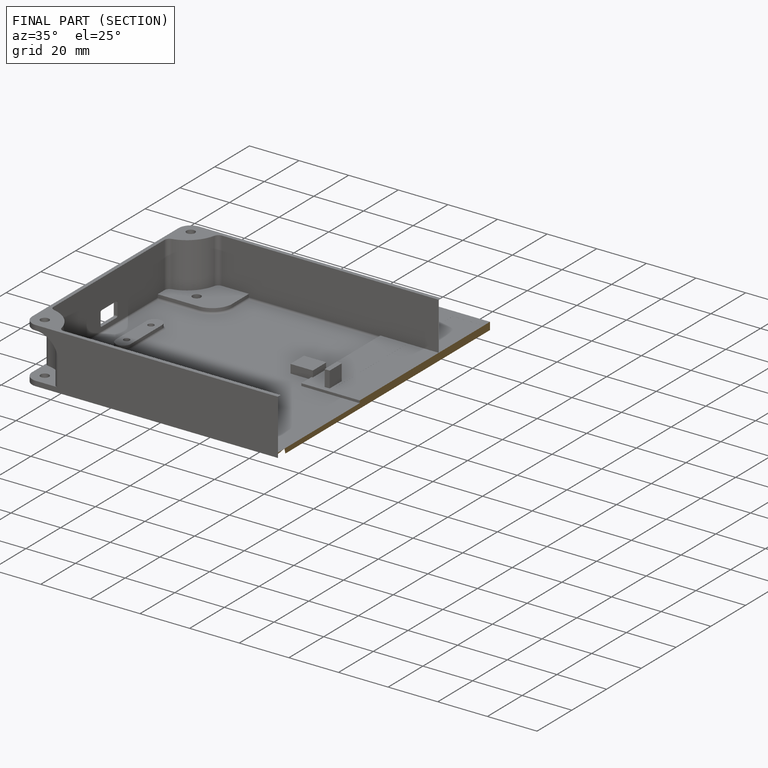
[diagram: finished part — half-section view (interior)]
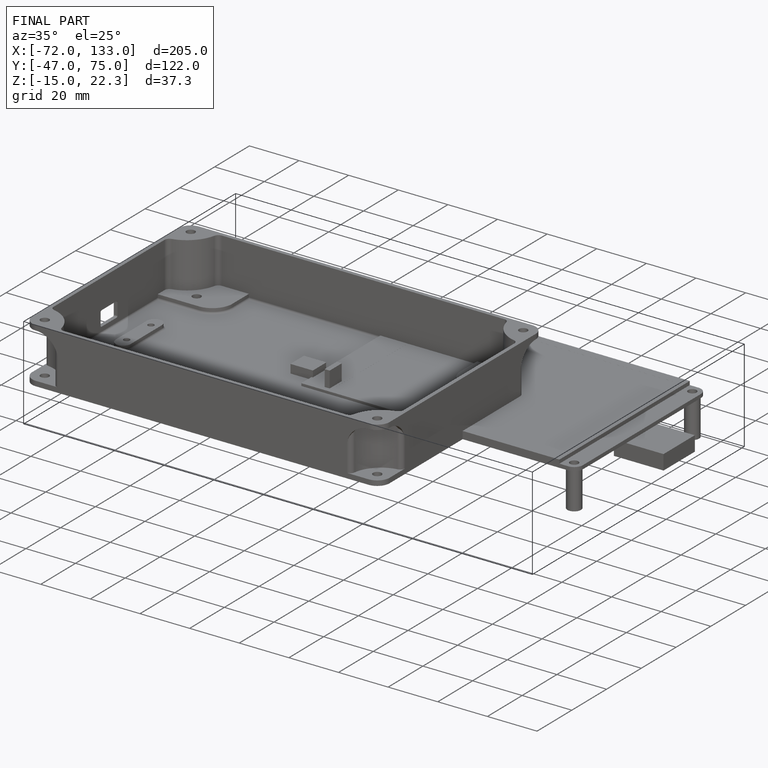
[diagram: finished part — iso view with bounding-box wireframe]
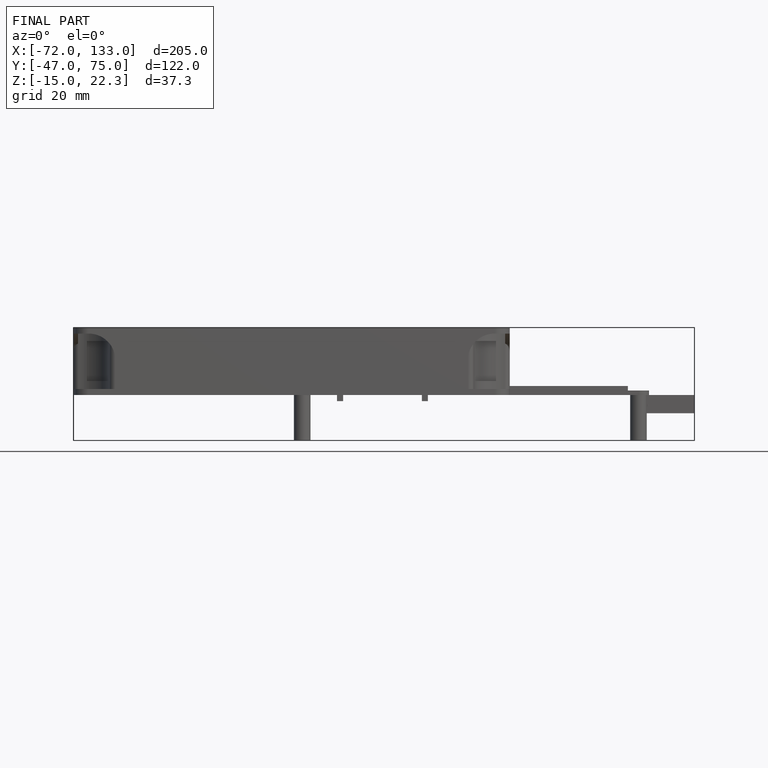
[diagram: finished part — front view with bounding-box wireframe]
